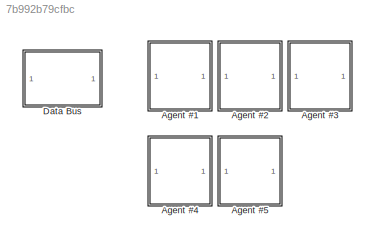
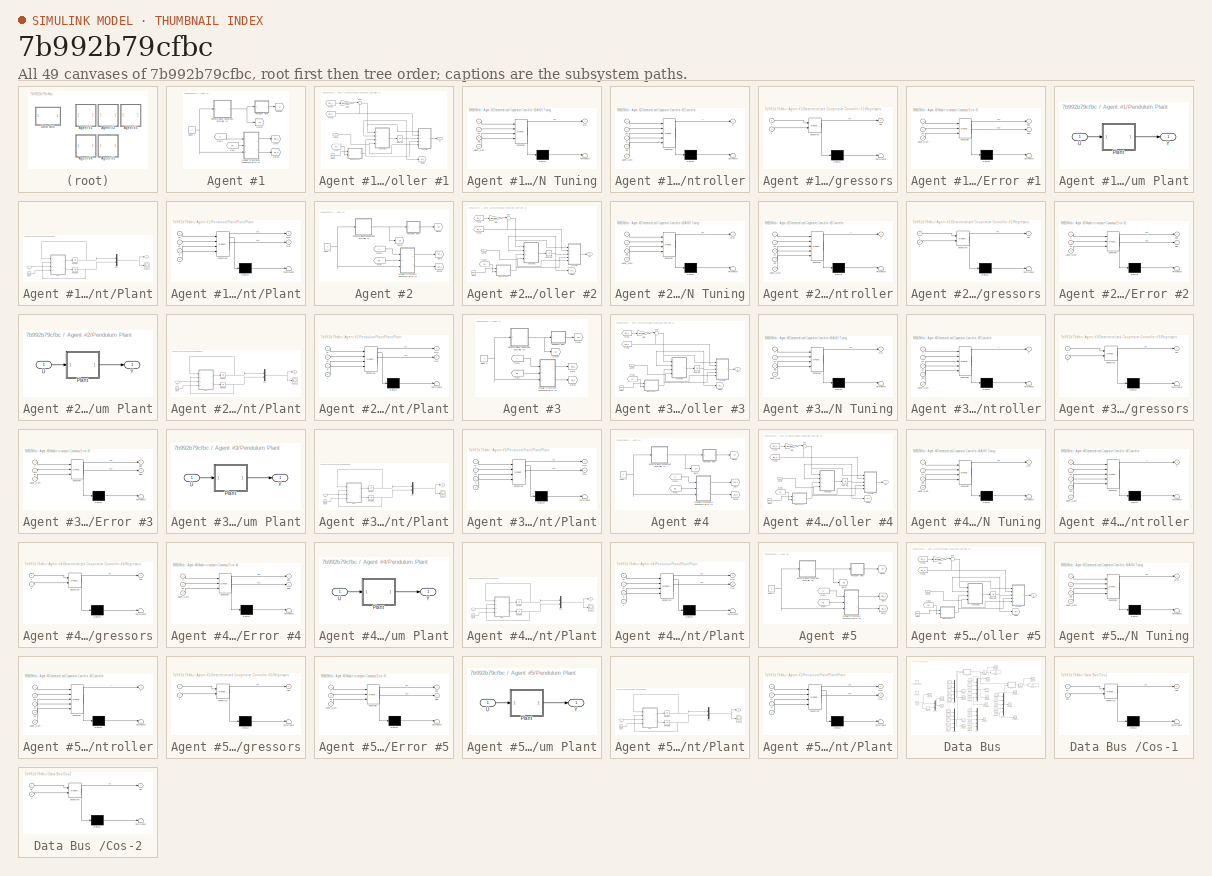
[diagram: thumbnail index - all 49 canvases of the model, root first then tree order]
MODEL slx_7b992b79cfbc
KIND model
CONFIG AbsTol = auto
CONFIG EnableMultiTasking = on
CONFIG FixedStep = auto
CONFIG InitFcn = constants_CAMFC2_Pendulum_Comp_Lewis\n\n
CONFIG MaxStep = auto
CONFIG MinStep = auto
CONFIG RelTol = 1e-3
CONFIG SampleTimeConstraint = Unconstrained
CONFIG Solver = ode23
CONFIG SolverName = ode23
CONFIG StartTime = 0.0
CONFIG StopTime = 40
BLOCK [SubSystem] Agent #1
  Ports = []
  RequestExecContextInheritance = off
BLOCK [Constant] Agent #1/Agent #
BLOCK [SubSystem] Agent #1/Decenteralized Cooperaive Controller #1
  Ports = [1, 1]
  RequestExecContextInheritance = off
BLOCK [SubSystem] Agent #1/Decenteralized Cooperaive Controller #1/ANN Tuning
  ErrorFcn = Stateflow.Translate.translate
  PermitHierarchicalResolution = ExplicitOnly
  Ports = [4, 1]
  RequestExecContextInheritance = off
  SFBlockType = MATLAB Function
  TreatAsAtomicUnit = on
BLOCK [Demux] Agent #1/Decenteralized Cooperaive Controller #1/ANN Tuning/ Demux 
  Outputs = 1
  Ports = [1, 1]
BLOCK [S-Function] Agent #1/Decenteralized Cooperaive Controller #1/ANN Tuning/ SFunction 
  EnableBusSupport = on
  FunctionName = sf_sfun
  Parameters = BN,DN,F,P,k
  PortCounts = [4 2]
  Ports = [4, 2]
  SFcnIsStateOwnerBlock = off
  SFunctionDeploymentMode = off
  Tag = Stateflow S-Function CAMFC2_Pendulum_Comp_Lewis 15
BLOCK [Terminator] Agent #1/Decenteralized Cooperaive Controller #1/ANN Tuning/ Terminator 
BLOCK [Inport] Agent #1/Decenteralized Cooperaive Controller #1/ANN Tuning/Agent_Num
  IconDisplay = Port number
  Port = 4
BLOCK [Outport] Agent #1/Decenteralized Cooperaive Controller #1/ANN Tuning/DW
  IconDisplay = Port number
BLOCK [Inport] Agent #1/Decenteralized Cooperaive Controller #1/ANN Tuning/Phi
  IconDisplay = Port number
  Port = 3
BLOCK [Inport] Agent #1/Decenteralized Cooperaive Controller #1/ANN Tuning/W
  IconDisplay = Port number
  Port = 2
BLOCK [Inport] Agent #1/Decenteralized Cooperaive Controller #1/ANN Tuning/r
  IconDisplay = Port number
BLOCK [Inport] Agent #1/Decenteralized Cooperaive Controller #1/Agent #
  IconDisplay = Port number
BLOCK [Clock] Agent #1/Decenteralized Cooperaive Controller #1/Clock
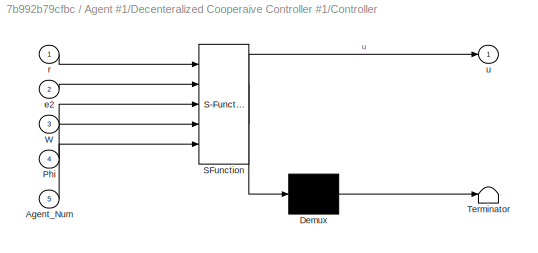
BLOCK [SubSystem] Agent #1/Decenteralized Cooperaive Controller #1/Controller
  ErrorFcn = Stateflow.Translate.translate
  PermitHierarchicalResolution = ExplicitOnly
  Ports = [5, 1]
  RequestExecContextInheritance = off
  SFBlockType = MATLAB Function
  TreatAsAtomicUnit = on
BLOCK [Demux] Agent #1/Decenteralized Cooperaive Controller #1/Controller/ Demux 
  Outputs = 1
  Ports = [1, 1]
BLOCK [S-Function] Agent #1/Decenteralized Cooperaive Controller #1/Controller/ SFunction 
  EnableBusSupport = on
  FunctionName = sf_sfun
  Parameters = BN,DN,c,lambda
  PortCounts = [5 2]
  Ports = [5, 2]
  SFcnIsStateOwnerBlock = off
  SFunctionDeploymentMode = off
  Tag = Stateflow S-Function CAMFC2_Pendulum_Comp_Lewis 14
BLOCK [Terminator] Agent #1/Decenteralized Cooperaive Controller #1/Controller/ Terminator 
BLOCK [Inport] Agent #1/Decenteralized Cooperaive Controller #1/Controller/Agent_Num
  IconDisplay = Port number
  Port = 5
BLOCK [Inport] Agent #1/Decenteralized Cooperaive Controller #1/Controller/Phi
  IconDisplay = Port number
  Port = 4
BLOCK [Inport] Agent #1/Decenteralized Cooperaive Controller #1/Controller/W
  IconDisplay = Port number
  Port = 3
BLOCK [Inport] Agent #1/Decenteralized Cooperaive Controller #1/Controller/e2
  IconDisplay = Port number
  Port = 2
BLOCK [Inport] Agent #1/Decenteralized Cooperaive Controller #1/Controller/r
  IconDisplay = Port number
BLOCK [Outport] Agent #1/Decenteralized Cooperaive Controller #1/Controller/u
  IconDisplay = Port number
BLOCK [From] Agent #1/Decenteralized Cooperaive Controller #1/From1
  GotoTag = E1_1
  TagVisibility = global
BLOCK [From] Agent #1/Decenteralized Cooperaive Controller #1/From2
  GotoTag = X1
  TagVisibility = global
BLOCK [From] Agent #1/Decenteralized Cooperaive Controller #1/From3
  GotoTag = E1_2
  TagVisibility = global
BLOCK [Gain] Agent #1/Decenteralized Cooperaive Controller #1/Gain
  Gain = lambda
  OutDataTypeStr = Inherit: Inherit via internal rule
  ParamDataTypeStr = Inherit: Inherit via internal rule
  SaturateOnIntegerOverflow = off
BLOCK [Goto] Agent #1/Decenteralized Cooperaive Controller #1/Goto2
  GotoTag = W1
  TagVisibility = global
BLOCK [Integrator] Agent #1/Decenteralized Cooperaive Controller #1/Integrator
  InitialCondition = zeros(NN,1)
  Ports = [1, 1]
BLOCK [SubSystem] Agent #1/Decenteralized Cooperaive Controller #1/Regressors
  ErrorFcn = Stateflow.Translate.translate
  PermitHierarchicalResolution = ExplicitOnly
  Ports = [2, 1]
  RequestExecContextInheritance = off
  SFBlockType = MATLAB Function
  TreatAsAtomicUnit = on
BLOCK [Demux] Agent #1/Decenteralized Cooperaive Controller #1/Regressors/ Demux 
  Outputs = 1
  Ports = [1, 1]
BLOCK [S-Function] Agent #1/Decenteralized Cooperaive Controller #1/Regressors/ SFunction 
  EnableBusSupport = on
  FunctionName = sf_sfun
  Parameters = NN,k_NN
  PortCounts = [2 2]
  Ports = [2, 2]
  SFcnIsStateOwnerBlock = off
  SFunctionDeploymentMode = off
  Tag = Stateflow S-Function CAMFC2_Pendulum_Comp_Lewis 16
BLOCK [Terminator] Agent #1/Decenteralized Cooperaive Controller #1/Regressors/ Terminator 
BLOCK [Outport] Agent #1/Decenteralized Cooperaive Controller #1/Regressors/Phi
  IconDisplay = Port number
BLOCK [Inport] Agent #1/Decenteralized Cooperaive Controller #1/Regressors/t
  IconDisplay = Port number
BLOCK [Inport] Agent #1/Decenteralized Cooperaive Controller #1/Regressors/x
  IconDisplay = Port number
  Port = 2
BLOCK [Sum] Agent #1/Decenteralized Cooperaive Controller #1/Sum
  IconShape = round
  InputSameDT = off
  Inputs = |++
  OutDataTypeStr = Inherit: Inherit via internal rule
  Ports = [2, 1]
  SaturateOnIntegerOverflow = off
BLOCK [Outport] Agent #1/Decenteralized Cooperaive Controller #1/U1
  IconDisplay = Port number
BLOCK [From] Agent #1/From
  GotoTag = X0
  TagVisibility = global
BLOCK [From] Agent #1/From1
  GotoTag = X
  TagVisibility = global
BLOCK [Goto] Agent #1/Goto
  GotoTag = E1_1
  TagVisibility = global
BLOCK [Goto] Agent #1/Goto1
  GotoTag = X1
  TagVisibility = global
BLOCK [Goto] Agent #1/Goto2
  GotoTag = U1
  TagVisibility = global
BLOCK [Goto] Agent #1/Goto3
  GotoTag = E1_2
  TagVisibility = global
BLOCK [SubSystem] Agent #1/Module to compute Consensus Error #1
  ErrorFcn = Stateflow.Translate.translate
  PermitHierarchicalResolution = ExplicitOnly
  Ports = [3, 2]
  RequestExecContextInheritance = off
  SFBlockType = MATLAB Function
  TreatAsAtomicUnit = on
BLOCK [Demux] Agent #1/Module to compute Consensus Error #1/ Demux 
  Outputs = 1
  Ports = [1, 1]
BLOCK [S-Function] Agent #1/Module to compute Consensus Error #1/ SFunction 
  EnableBusSupport = on
  FunctionName = sf_sfun
  Parameters = AN,BN,N,n
  PortCounts = [3 3]
  Ports = [3, 3]
  SFcnIsStateOwnerBlock = off
  SFunctionDeploymentMode = off
  Tag = Stateflow S-Function CAMFC2_Pendulum_Comp_Lewis 19
BLOCK [Terminator] Agent #1/Module to compute Consensus Error #1/ Terminator 
BLOCK [Inport] Agent #1/Module to compute Consensus Error #1/Agent_Num
  IconDisplay = Port number
  Port = 3
BLOCK [Outport] Agent #1/Module to compute Consensus Error #1/Ep1
  IconDisplay = Port number
BLOCK [Outport] Agent #1/Module to compute Consensus Error #1/Ep2
  IconDisplay = Port number
  Port = 2
BLOCK [Inport] Agent #1/Module to compute Consensus Error #1/X
  IconDisplay = Port number
BLOCK [Inport] Agent #1/Module to compute Consensus Error #1/X0
  IconDisplay = Port number
  Port = 2
BLOCK [SubSystem] Agent #1/Pendulum Plant
  Ports = [1, 1]
  RequestExecContextInheritance = off
BLOCK [SubSystem] Agent #1/Pendulum Plant/Plant
  Ports = [1, 1]
  RequestExecContextInheritance = off
BLOCK [Clock] Agent #1/Pendulum Plant/Plant/Clock
BLOCK [Integrator] Agent #1/Pendulum Plant/Plant/Integrator
  Ports = [1, 1]
BLOCK [Integrator] Agent #1/Pendulum Plant/Plant/Integrator1
  Ports = [1, 1]
BLOCK [Mux] Agent #1/Pendulum Plant/Plant/Mux
  DisplayOption = bar
  Inputs = 2
  Ports = [2, 1]
BLOCK [SubSystem] Agent #1/Pendulum Plant/Plant/Plant
  ErrorFcn = Stateflow.Translate.translate
  PermitHierarchicalResolution = ExplicitOnly
  Ports = [4, 2]
  RequestExecContextInheritance = off
  SFBlockType = MATLAB Function
  TreatAsAtomicUnit = on
BLOCK [Demux] Agent #1/Pendulum Plant/Plant/Plant/ Demux 
  Outputs = 1
  Ports = [1, 1]
BLOCK [S-Function] Agent #1/Pendulum Plant/Plant/Plant/ SFunction 
  EnableBusSupport = on
  FunctionName = sf_sfun
  Parameters = Bp,Disturb_Freq,Disturb_Val,Jp,Mp,ge,lp
  PortCounts = [4 3]
  Ports = [4, 3]
  SFcnIsStateOwnerBlock = off
  SFunctionDeploymentMode = off
  Tag = Stateflow S-Function CAMFC2_Pendulum_Comp_Lewis 17
BLOCK [Terminator] Agent #1/Pendulum Plant/Plant/Plant/ Terminator 
BLOCK [Outport] Agent #1/Pendulum Plant/Plant/Plant/Dx1
  IconDisplay = Port number
BLOCK [Outport] Agent #1/Pendulum Plant/Plant/Plant/Dx2
  IconDisplay = Port number
  Port = 2
BLOCK [Inport] Agent #1/Pendulum Plant/Plant/Plant/t
  IconDisplay = Port number
  Port = 4
BLOCK [Inport] Agent #1/Pendulum Plant/Plant/Plant/u
  IconDisplay = Port number
  Port = 3
BLOCK [Inport] Agent #1/Pendulum Plant/Plant/Plant/x1
  IconDisplay = Port number
BLOCK [Inport] Agent #1/Pendulum Plant/Plant/Plant/x2
  IconDisplay = Port number
  Port = 2
BLOCK [Scope] Agent #1/Pendulum Plant/Plant/Scope3
  Floating = off
  NumInputPorts = 1
  Ports = [1]
  ScopeSpecificationString = Simulink.scopes.TimeScopeBlockCfg('CurrentConfiguration', extmgr.ConfigurationSet(extmgr.Configuration('Core','General UI',true),extmgr.Configuration('Core','Source UI',true),extmgr.Configuration('Sources','WiredSimulink',true,'DataLoggingVariableName','ScopeData4','DataLoggingSaveFormat','StructureWithTime','DataLoggingDecimation','1','DataLoggingDecimateData',true),extmgr.Configuration('Visuals'...<+1697ch>  <repeated x5 — deduplicated; at blocks: Scope3>
BLOCK [Inport] Agent #1/Pendulum Plant/Plant/U
  IconDisplay = Port number
BLOCK [Outport] Agent #1/Pendulum Plant/Plant/Y
  IconDisplay = Port number
BLOCK [Inport] Agent #1/Pendulum Plant/U
  IconDisplay = Port number
BLOCK [Outport] Agent #1/Pendulum Plant/Y
  IconDisplay = Port number
BLOCK [SubSystem] Agent #2
  Ports = []
  RequestExecContextInheritance = off
BLOCK [Constant] Agent #2/Agent #
  Value = 2
BLOCK [SubSystem] Agent #2/Decenteralized Cooperaive Controller #2
  Ports = [1, 1]
  RequestExecContextInheritance = off
BLOCK [SubSystem] Agent #2/Decenteralized Cooperaive Controller #2/ANN Tuning
  ErrorFcn = Stateflow.Translate.translate
  PermitHierarchicalResolution = ExplicitOnly
  Ports = [4, 1]
  RequestExecContextInheritance = off
  SFBlockType = MATLAB Function
  TreatAsAtomicUnit = on
BLOCK [Demux] Agent #2/Decenteralized Cooperaive Controller #2/ANN Tuning/ Demux 
  Outputs = 1
  Ports = [1, 1]
BLOCK [S-Function] Agent #2/Decenteralized Cooperaive Controller #2/ANN Tuning/ SFunction 
  EnableBusSupport = on
  FunctionName = sf_sfun
  Parameters = BN,DN,F,P,k
  PortCounts = [4 2]
  Ports = [4, 2]
  SFcnIsStateOwnerBlock = off
  SFunctionDeploymentMode = off
  Tag = Stateflow S-Function CAMFC2_Pendulum_Comp_Lewis 1
BLOCK [Terminator] Agent #2/Decenteralized Cooperaive Controller #2/ANN Tuning/ Terminator 
BLOCK [Inport] Agent #2/Decenteralized Cooperaive Controller #2/ANN Tuning/Agent_Num
  IconDisplay = Port number
  Port = 4
BLOCK [Outport] Agent #2/Decenteralized Cooperaive Controller #2/ANN Tuning/DW
  IconDisplay = Port number
BLOCK [Inport] Agent #2/Decenteralized Cooperaive Controller #2/ANN Tuning/Phi
  IconDisplay = Port number
  Port = 3
BLOCK [Inport] Agent #2/Decenteralized Cooperaive Controller #2/ANN Tuning/W
  IconDisplay = Port number
  Port = 2
BLOCK [Inport] Agent #2/Decenteralized Cooperaive Controller #2/ANN Tuning/r
  IconDisplay = Port number
BLOCK [Inport] Agent #2/Decenteralized Cooperaive Controller #2/Agent #
  IconDisplay = Port number
BLOCK [Clock] Agent #2/Decenteralized Cooperaive Controller #2/Clock
BLOCK [SubSystem] Agent #2/Decenteralized Cooperaive Controller #2/Controller
  ErrorFcn = Stateflow.Translate.translate
  PermitHierarchicalResolution = ExplicitOnly
  Ports = [5, 1]
  RequestExecContextInheritance = off
  SFBlockType = MATLAB Function
  TreatAsAtomicUnit = on
BLOCK [Demux] Agent #2/Decenteralized Cooperaive Controller #2/Controller/ Demux 
  Outputs = 1
  Ports = [1, 1]
BLOCK [S-Function] Agent #2/Decenteralized Cooperaive Controller #2/Controller/ SFunction 
  EnableBusSupport = on
  FunctionName = sf_sfun
  Parameters = BN,DN,c,lambda
  PortCounts = [5 2]
  Ports = [5, 2]
  SFcnIsStateOwnerBlock = off
  SFunctionDeploymentMode = off
  Tag = Stateflow S-Function CAMFC2_Pendulum_Comp_Lewis 2
BLOCK [Terminator] Agent #2/Decenteralized Cooperaive Controller #2/Controller/ Terminator 
BLOCK [Inport] Agent #2/Decenteralized Cooperaive Controller #2/Controller/Agent_Num
  IconDisplay = Port number
  Port = 5
BLOCK [Inport] Agent #2/Decenteralized Cooperaive Controller #2/Controller/Phi
  IconDisplay = Port number
  Port = 4
BLOCK [Inport] Agent #2/Decenteralized Cooperaive Controller #2/Controller/W
  IconDisplay = Port number
  Port = 3
BLOCK [Inport] Agent #2/Decenteralized Cooperaive Controller #2/Controller/e2
  IconDisplay = Port number
  Port = 2
BLOCK [Inport] Agent #2/Decenteralized Cooperaive Controller #2/Controller/r
  IconDisplay = Port number
BLOCK [Outport] Agent #2/Decenteralized Cooperaive Controller #2/Controller/u
  IconDisplay = Port number
BLOCK [From] Agent #2/Decenteralized Cooperaive Controller #2/From1
  GotoTag = E2_1
  TagVisibility = global
BLOCK [From] Agent #2/Decenteralized Cooperaive Controller #2/From2
  GotoTag = X2
  TagVisibility = global
BLOCK [From] Agent #2/Decenteralized Cooperaive Controller #2/From3
  GotoTag = E2_2
  TagVisibility = global
BLOCK [Gain] Agent #2/Decenteralized Cooperaive Controller #2/Gain
  Gain = lambda
  OutDataTypeStr = Inherit: Inherit via internal rule
  ParamDataTypeStr = Inherit: Inherit via internal rule
  SaturateOnIntegerOverflow = off
BLOCK [Goto] Agent #2/Decenteralized Cooperaive Controller #2/Goto2
  GotoTag = W2
  TagVisibility = global
BLOCK [Integrator] Agent #2/Decenteralized Cooperaive Controller #2/Integrator
  InitialCondition = zeros(NN,1)
  Ports = [1, 1]
BLOCK [SubSystem] Agent #2/Decenteralized Cooperaive Controller #2/Regressors
  ErrorFcn = Stateflow.Translate.translate
  PermitHierarchicalResolution = ExplicitOnly
  Ports = [2, 1]
  RequestExecContextInheritance = off
  SFBlockType = MATLAB Function
  TreatAsAtomicUnit = on
BLOCK [Demux] Agent #2/Decenteralized Cooperaive Controller #2/Regressors/ Demux 
  Outputs = 1
  Ports = [1, 1]
BLOCK [S-Function] Agent #2/Decenteralized Cooperaive Controller #2/Regressors/ SFunction 
  EnableBusSupport = on
  FunctionName = sf_sfun
  Parameters = NN,k_NN
  PortCounts = [2 2]
  Ports = [2, 2]
  SFcnIsStateOwnerBlock = off
  SFunctionDeploymentMode = off
  Tag = Stateflow S-Function CAMFC2_Pendulum_Comp_Lewis 3
BLOCK [Terminator] Agent #2/Decenteralized Cooperaive Controller #2/Regressors/ Terminator 
BLOCK [Outport] Agent #2/Decenteralized Cooperaive Controller #2/Regressors/Phi
  IconDisplay = Port number
BLOCK [Inport] Agent #2/Decenteralized Cooperaive Controller #2/Regressors/t
  IconDisplay = Port number
BLOCK [Inport] Agent #2/Decenteralized Cooperaive Controller #2/Regressors/x
  IconDisplay = Port number
  Port = 2
BLOCK [Sum] Agent #2/Decenteralized Cooperaive Controller #2/Sum
  IconShape = round
  InputSameDT = off
  Inputs = |++
  OutDataTypeStr = Inherit: Inherit via internal rule
  Ports = [2, 1]
  SaturateOnIntegerOverflow = off
BLOCK [Outport] Agent #2/Decenteralized Cooperaive Controller #2/U2
  IconDisplay = Port number
BLOCK [From] Agent #2/From
  GotoTag = X0
  TagVisibility = global
BLOCK [From] Agent #2/From1
  GotoTag = X
  TagVisibility = global
BLOCK [Goto] Agent #2/Goto
  GotoTag = E2_1
  TagVisibility = global
BLOCK [Goto] Agent #2/Goto1
  GotoTag = X2
  TagVisibility = global
BLOCK [Goto] Agent #2/Goto2
  GotoTag = U2
  TagVisibility = global
BLOCK [Goto] Agent #2/Goto3
  GotoTag = E2_2
  TagVisibility = global
BLOCK [SubSystem] Agent #2/Module to compute Consensus Error #2
  ErrorFcn = Stateflow.Translate.translate
  PermitHierarchicalResolution = ExplicitOnly
  Ports = [3, 2]
  RequestExecContextInheritance = off
  SFBlockType = MATLAB Function
  TreatAsAtomicUnit = on
BLOCK [Demux] Agent #2/Module to compute Consensus Error #2/ Demux 
  Outputs = 1
  Ports = [1, 1]
BLOCK [S-Function] Agent #2/Module to compute Consensus Error #2/ SFunction 
  EnableBusSupport = on
  FunctionName = sf_sfun
  Parameters = AN,BN,N,n
  PortCounts = [3 3]
  Ports = [3, 3]
  SFcnIsStateOwnerBlock = off
  SFunctionDeploymentMode = off
  Tag = Stateflow S-Function CAMFC2_Pendulum_Comp_Lewis 4
BLOCK [Terminator] Agent #2/Module to compute Consensus Error #2/ Terminator 
BLOCK [Inport] Agent #2/Module to compute Consensus Error #2/Agent_Num
  IconDisplay = Port number
  Port = 3
BLOCK [Outport] Agent #2/Module to compute Consensus Error #2/Ep1
  IconDisplay = Port number
BLOCK [Outport] Agent #2/Module to compute Consensus Error #2/Ep2
  IconDisplay = Port number
  Port = 2
BLOCK [Inport] Agent #2/Module to compute Consensus Error #2/X
  IconDisplay = Port number
BLOCK [Inport] Agent #2/Module to compute Consensus Error #2/X0
  IconDisplay = Port number
  Port = 2
BLOCK [SubSystem] Agent #2/Pendulum Plant
  Ports = [1, 1]
  RequestExecContextInheritance = off
BLOCK [SubSystem] Agent #2/Pendulum Plant/Plant
  Ports = [1, 1]
  RequestExecContextInheritance = off
BLOCK [Clock] Agent #2/Pendulum Plant/Plant/Clock
BLOCK [Integrator] Agent #2/Pendulum Plant/Plant/Integrator
  InitialCondition = -0.5
  Ports = [1, 1]
BLOCK [Integrator] Agent #2/Pendulum Plant/Plant/Integrator1
  Ports = [1, 1]
BLOCK [Mux] Agent #2/Pendulum Plant/Plant/Mux
  DisplayOption = bar
  Inputs = 2
  Ports = [2, 1]
BLOCK [SubSystem] Agent #2/Pendulum Plant/Plant/Plant
  ErrorFcn = Stateflow.Translate.translate
  PermitHierarchicalResolution = ExplicitOnly
  Ports = [4, 2]
  RequestExecContextInheritance = off
  SFBlockType = MATLAB Function
  TreatAsAtomicUnit = on
BLOCK [Demux] Agent #2/Pendulum Plant/Plant/Plant/ Demux 
  Outputs = 1
  Ports = [1, 1]
BLOCK [S-Function] Agent #2/Pendulum Plant/Plant/Plant/ SFunction 
  EnableBusSupport = on
  FunctionName = sf_sfun
  Parameters = Bp,Disturb_Freq,Disturb_Val,Jp,Mp,ge,lp
  PortCounts = [4 3]
  Ports = [4, 3]
  SFcnIsStateOwnerBlock = off
  SFunctionDeploymentMode = off
  Tag = Stateflow S-Function CAMFC2_Pendulum_Comp_Lewis 5
BLOCK [Terminator] Agent #2/Pendulum Plant/Plant/Plant/ Terminator 
BLOCK [Outport] Agent #2/Pendulum Plant/Plant/Plant/Dx1
  IconDisplay = Port number
BLOCK [Outport] Agent #2/Pendulum Plant/Plant/Plant/Dx2
  IconDisplay = Port number
  Port = 2
BLOCK [Inport] Agent #2/Pendulum Plant/Plant/Plant/t
  IconDisplay = Port number
  Port = 4
BLOCK [Inport] Agent #2/Pendulum Plant/Plant/Plant/u
  IconDisplay = Port number
  Port = 3
BLOCK [Inport] Agent #2/Pendulum Plant/Plant/Plant/x1
  IconDisplay = Port number
BLOCK [Inport] Agent #2/Pendulum Plant/Plant/Plant/x2
  IconDisplay = Port number
  Port = 2
BLOCK [Scope] Agent #2/Pendulum Plant/Plant/Scope3
  Floating = off
  NumInputPorts = 1
  Ports = [1]
BLOCK [Inport] Agent #2/Pendulum Plant/Plant/U
  IconDisplay = Port number
BLOCK [Outport] Agent #2/Pendulum Plant/Plant/Y
  IconDisplay = Port number
BLOCK [Inport] Agent #2/Pendulum Plant/U
  IconDisplay = Port number
BLOCK [Outport] Agent #2/Pendulum Plant/Y
  IconDisplay = Port number
BLOCK [SubSystem] Agent #3
  Ports = []
  RequestExecContextInheritance = off
BLOCK [Constant] Agent #3/Agent #
  Value = 3
BLOCK [SubSystem] Agent #3/Decenteralized Cooperaive Controller #3
  Ports = [1, 1]
  RequestExecContextInheritance = off
BLOCK [SubSystem] Agent #3/Decenteralized Cooperaive Controller #3/ANN Tuning
  ErrorFcn = Stateflow.Translate.translate
  PermitHierarchicalResolution = ExplicitOnly
  Ports = [4, 1]
  RequestExecContextInheritance = off
  SFBlockType = MATLAB Function
  TreatAsAtomicUnit = on
BLOCK [Demux] Agent #3/Decenteralized Cooperaive Controller #3/ANN Tuning/ Demux 
  Outputs = 1
  Ports = [1, 1]
BLOCK [S-Function] Agent #3/Decenteralized Cooperaive Controller #3/ANN Tuning/ SFunction 
  EnableBusSupport = on
  FunctionName = sf_sfun
  Parameters = BN,DN,F,P,k
  PortCounts = [4 2]
  Ports = [4, 2]
  SFcnIsStateOwnerBlock = off
  SFunctionDeploymentMode = off
  Tag = Stateflow S-Function CAMFC2_Pendulum_Comp_Lewis 6
BLOCK [Terminator] Agent #3/Decenteralized Cooperaive Controller #3/ANN Tuning/ Terminator 
BLOCK [Inport] Agent #3/Decenteralized Cooperaive Controller #3/ANN Tuning/Agent_Num
  IconDisplay = Port number
  Port = 4
BLOCK [Outport] Agent #3/Decenteralized Cooperaive Controller #3/ANN Tuning/DW
  IconDisplay = Port number
BLOCK [Inport] Agent #3/Decenteralized Cooperaive Controller #3/ANN Tuning/Phi
  IconDisplay = Port number
  Port = 3
BLOCK [Inport] Agent #3/Decenteralized Cooperaive Controller #3/ANN Tuning/W
  IconDisplay = Port number
  Port = 2
BLOCK [Inport] Agent #3/Decenteralized Cooperaive Controller #3/ANN Tuning/r
  IconDisplay = Port number
BLOCK [Inport] Agent #3/Decenteralized Cooperaive Controller #3/Agent #
  IconDisplay = Port number
BLOCK [Clock] Agent #3/Decenteralized Cooperaive Controller #3/Clock
BLOCK [SubSystem] Agent #3/Decenteralized Cooperaive Controller #3/Controller
  ErrorFcn = Stateflow.Translate.translate
  PermitHierarchicalResolution = ExplicitOnly
  Ports = [5, 1]
  RequestExecContextInheritance = off
  SFBlockType = MATLAB Function
  TreatAsAtomicUnit = on
BLOCK [Demux] Agent #3/Decenteralized Cooperaive Controller #3/Controller/ Demux 
  Outputs = 1
  Ports = [1, 1]
BLOCK [S-Function] Agent #3/Decenteralized Cooperaive Controller #3/Controller/ SFunction 
  EnableBusSupport = on
  FunctionName = sf_sfun
  Parameters = BN,DN,c,lambda
  PortCounts = [5 2]
  Ports = [5, 2]
  SFcnIsStateOwnerBlock = off
  SFunctionDeploymentMode = off
  Tag = Stateflow S-Function CAMFC2_Pendulum_Comp_Lewis 7
BLOCK [Terminator] Agent #3/Decenteralized Cooperaive Controller #3/Controller/ Terminator 
BLOCK [Inport] Agent #3/Decenteralized Cooperaive Controller #3/Controller/Agent_Num
  IconDisplay = Port number
  Port = 5
BLOCK [Inport] Agent #3/Decenteralized Cooperaive Controller #3/Controller/Phi
  IconDisplay = Port number
  Port = 4
BLOCK [Inport] Agent #3/Decenteralized Cooperaive Controller #3/Controller/W
  IconDisplay = Port number
  Port = 3
BLOCK [Inport] Agent #3/Decenteralized Cooperaive Controller #3/Controller/e2
  IconDisplay = Port number
  Port = 2
BLOCK [Inport] Agent #3/Decenteralized Cooperaive Controller #3/Controller/r
  IconDisplay = Port number
BLOCK [Outport] Agent #3/Decenteralized Cooperaive Controller #3/Controller/u
  IconDisplay = Port number
BLOCK [From] Agent #3/Decenteralized Cooperaive Controller #3/From1
  GotoTag = E3_1
  TagVisibility = global
BLOCK [From] Agent #3/Decenteralized Cooperaive Controller #3/From2
  GotoTag = X3
  TagVisibility = global
BLOCK [From] Agent #3/Decenteralized Cooperaive Controller #3/From3
  GotoTag = E3_2
  TagVisibility = global
BLOCK [Gain] Agent #3/Decenteralized Cooperaive Controller #3/Gain
  Gain = lambda
  OutDataTypeStr = Inherit: Inherit via internal rule
  ParamDataTypeStr = Inherit: Inherit via internal rule
  SaturateOnIntegerOverflow = off
BLOCK [Goto] Agent #3/Decenteralized Cooperaive Controller #3/Goto2
  GotoTag = W3
  TagVisibility = global
BLOCK [Integrator] Agent #3/Decenteralized Cooperaive Controller #3/Integrator
  InitialCondition = zeros(NN,1)
  Ports = [1, 1]
BLOCK [SubSystem] Agent #3/Decenteralized Cooperaive Controller #3/Regressors
  ErrorFcn = Stateflow.Translate.translate
  PermitHierarchicalResolution = ExplicitOnly
  Ports = [2, 1]
  RequestExecContextInheritance = off
  SFBlockType = MATLAB Function
  TreatAsAtomicUnit = on
BLOCK [Demux] Agent #3/Decenteralized Cooperaive Controller #3/Regressors/ Demux 
  Outputs = 1
  Ports = [1, 1]
BLOCK [S-Function] Agent #3/Decenteralized Cooperaive Controller #3/Regressors/ SFunction 
  EnableBusSupport = on
  FunctionName = sf_sfun
  Parameters = NN,k_NN
  PortCounts = [2 2]
  Ports = [2, 2]
  SFcnIsStateOwnerBlock = off
  SFunctionDeploymentMode = off
  Tag = Stateflow S-Function CAMFC2_Pendulum_Comp_Lewis 8
BLOCK [Terminator] Agent #3/Decenteralized Cooperaive Controller #3/Regressors/ Terminator 
BLOCK [Outport] Agent #3/Decenteralized Cooperaive Controller #3/Regressors/Phi
  IconDisplay = Port number
BLOCK [Inport] Agent #3/Decenteralized Cooperaive Controller #3/Regressors/t
  IconDisplay = Port number
BLOCK [Inport] Agent #3/Decenteralized Cooperaive Controller #3/Regressors/x
  IconDisplay = Port number
  Port = 2
BLOCK [Sum] Agent #3/Decenteralized Cooperaive Controller #3/Sum
  IconShape = round
  InputSameDT = off
  Inputs = |++
  OutDataTypeStr = Inherit: Inherit via internal rule
  Ports = [2, 1]
  SaturateOnIntegerOverflow = off
BLOCK [Outport] Agent #3/Decenteralized Cooperaive Controller #3/U3
  IconDisplay = Port number
BLOCK [From] Agent #3/From
  GotoTag = X0
  TagVisibility = global
BLOCK [From] Agent #3/From1
  GotoTag = X
  TagVisibility = global
BLOCK [Goto] Agent #3/Goto
  GotoTag = E3_1
  TagVisibility = global
BLOCK [Goto] Agent #3/Goto1
  GotoTag = X3
  TagVisibility = global
BLOCK [Goto] Agent #3/Goto2
  GotoTag = U3
  TagVisibility = global
BLOCK [Goto] Agent #3/Goto3
  GotoTag = E3_2
  TagVisibility = global
BLOCK [SubSystem] Agent #3/Module to compute Consensus Error #3
  ErrorFcn = Stateflow.Translate.translate
  PermitHierarchicalResolution = ExplicitOnly
  Ports = [3, 2]
  RequestExecContextInheritance = off
  SFBlockType = MATLAB Function
  TreatAsAtomicUnit = on
BLOCK [Demux] Agent #3/Module to compute Consensus Error #3/ Demux 
  Outputs = 1
  Ports = [1, 1]
BLOCK [S-Function] Agent #3/Module to compute Consensus Error #3/ SFunction 
  EnableBusSupport = on
  FunctionName = sf_sfun
  Parameters = AN,BN,N,n
  PortCounts = [3 3]
  Ports = [3, 3]
  SFcnIsStateOwnerBlock = off
  SFunctionDeploymentMode = off
  Tag = Stateflow S-Function CAMFC2_Pendulum_Comp_Lewis 9
BLOCK [Terminator] Agent #3/Module to compute Consensus Error #3/ Terminator 
BLOCK [Inport] Agent #3/Module to compute Consensus Error #3/Agent_Num
  IconDisplay = Port number
  Port = 3
BLOCK [Outport] Agent #3/Module to compute Consensus Error #3/Ep1
  IconDisplay = Port number
BLOCK [Outport] Agent #3/Module to compute Consensus Error #3/Ep2
  IconDisplay = Port number
  Port = 2
BLOCK [Inport] Agent #3/Module to compute Consensus Error #3/X
  IconDisplay = Port number
BLOCK [Inport] Agent #3/Module to compute Consensus Error #3/X0
  IconDisplay = Port number
  Port = 2
BLOCK [SubSystem] Agent #3/Pendulum Plant
  Ports = [1, 1]
  RequestExecContextInheritance = off
BLOCK [SubSystem] Agent #3/Pendulum Plant/Plant
  Ports = [1, 1]
  RequestExecContextInheritance = off
BLOCK [Clock] Agent #3/Pendulum Plant/Plant/Clock
BLOCK [Integrator] Agent #3/Pendulum Plant/Plant/Integrator
  InitialCondition = +0.5
  Ports = [1, 1]
BLOCK [Integrator] Agent #3/Pendulum Plant/Plant/Integrator1
  Ports = [1, 1]
BLOCK [Mux] Agent #3/Pendulum Plant/Plant/Mux
  DisplayOption = bar
  Inputs = 2
  Ports = [2, 1]
BLOCK [SubSystem] Agent #3/Pendulum Plant/Plant/Plant
  ErrorFcn = Stateflow.Translate.translate
  PermitHierarchicalResolution = ExplicitOnly
  Ports = [4, 2]
  RequestExecContextInheritance = off
  SFBlockType = MATLAB Function
  TreatAsAtomicUnit = on
BLOCK [Demux] Agent #3/Pendulum Plant/Plant/Plant/ Demux 
  Outputs = 1
  Ports = [1, 1]
BLOCK [S-Function] Agent #3/Pendulum Plant/Plant/Plant/ SFunction 
  EnableBusSupport = on
  FunctionName = sf_sfun
  Parameters = Bp,Disturb_Freq,Disturb_Val,Jp,Mp,ge,lp
  PortCounts = [4 3]
  Ports = [4, 3]
  SFcnIsStateOwnerBlock = off
  SFunctionDeploymentMode = off
  Tag = Stateflow S-Function CAMFC2_Pendulum_Comp_Lewis 10
BLOCK [Terminator] Agent #3/Pendulum Plant/Plant/Plant/ Terminator 
BLOCK [Outport] Agent #3/Pendulum Plant/Plant/Plant/Dx1
  IconDisplay = Port number
BLOCK [Outport] Agent #3/Pendulum Plant/Plant/Plant/Dx2
  IconDisplay = Port number
  Port = 2
BLOCK [Inport] Agent #3/Pendulum Plant/Plant/Plant/t
  IconDisplay = Port number
  Port = 4
BLOCK [Inport] Agent #3/Pendulum Plant/Plant/Plant/u
  IconDisplay = Port number
  Port = 3
BLOCK [Inport] Agent #3/Pendulum Plant/Plant/Plant/x1
  IconDisplay = Port number
BLOCK [Inport] Agent #3/Pendulum Plant/Plant/Plant/x2
  IconDisplay = Port number
  Port = 2
BLOCK [Scope] Agent #3/Pendulum Plant/Plant/Scope3
  Floating = off
  NumInputPorts = 1
  Ports = [1]
BLOCK [Inport] Agent #3/Pendulum Plant/Plant/U
  IconDisplay = Port number
BLOCK [Outport] Agent #3/Pendulum Plant/Plant/Y
  IconDisplay = Port number
BLOCK [Inport] Agent #3/Pendulum Plant/U
  IconDisplay = Port number
BLOCK [Outport] Agent #3/Pendulum Plant/Y
  IconDisplay = Port number
BLOCK [SubSystem] Agent #4
  Ports = []
  RequestExecContextInheritance = off
BLOCK [Constant] Agent #4/Agent #
  Value = 4
BLOCK [SubSystem] Agent #4/Decenteralized Cooperaive Controller #4
  Ports = [1, 1]
  RequestExecContextInheritance = off
BLOCK [SubSystem] Agent #4/Decenteralized Cooperaive Controller #4/ANN Tuning
  ErrorFcn = Stateflow.Translate.translate
  PermitHierarchicalResolution = ExplicitOnly
  Ports = [4, 1]
  RequestExecContextInheritance = off
  SFBlockType = MATLAB Function
  TreatAsAtomicUnit = on
BLOCK [Demux] Agent #4/Decenteralized Cooperaive Controller #4/ANN Tuning/ Demux 
  Outputs = 1
  Ports = [1, 1]
BLOCK [S-Function] Agent #4/Decenteralized Cooperaive Controller #4/ANN Tuning/ SFunction 
  EnableBusSupport = on
  FunctionName = sf_sfun
  Parameters = BN,DN,F,P,k
  PortCounts = [4 2]
  Ports = [4, 2]
  SFcnIsStateOwnerBlock = off
  SFunctionDeploymentMode = off
  Tag = Stateflow S-Function CAMFC2_Pendulum_Comp_Lewis 11
BLOCK [Terminator] Agent #4/Decenteralized Cooperaive Controller #4/ANN Tuning/ Terminator 
BLOCK [Inport] Agent #4/Decenteralized Cooperaive Controller #4/ANN Tuning/Agent_Num
  IconDisplay = Port number
  Port = 4
BLOCK [Outport] Agent #4/Decenteralized Cooperaive Controller #4/ANN Tuning/DW
  IconDisplay = Port number
BLOCK [Inport] Agent #4/Decenteralized Cooperaive Controller #4/ANN Tuning/Phi
  IconDisplay = Port number
  Port = 3
BLOCK [Inport] Agent #4/Decenteralized Cooperaive Controller #4/ANN Tuning/W
  IconDisplay = Port number
  Port = 2
BLOCK [Inport] Agent #4/Decenteralized Cooperaive Controller #4/ANN Tuning/r
  IconDisplay = Port number
BLOCK [Inport] Agent #4/Decenteralized Cooperaive Controller #4/Agent #
  IconDisplay = Port number
BLOCK [Clock] Agent #4/Decenteralized Cooperaive Controller #4/Clock
BLOCK [SubSystem] Agent #4/Decenteralized Cooperaive Controller #4/Controller
  ErrorFcn = Stateflow.Translate.translate
  PermitHierarchicalResolution = ExplicitOnly
  Ports = [5, 1]
  RequestExecContextInheritance = off
  SFBlockType = MATLAB Function
  TreatAsAtomicUnit = on
BLOCK [Demux] Agent #4/Decenteralized Cooperaive Controller #4/Controller/ Demux 
  Outputs = 1
  Ports = [1, 1]
BLOCK [S-Function] Agent #4/Decenteralized Cooperaive Controller #4/Controller/ SFunction 
  EnableBusSupport = on
  FunctionName = sf_sfun
  Parameters = BN,DN,c,lambda
  PortCounts = [5 2]
  Ports = [5, 2]
  SFcnIsStateOwnerBlock = off
  SFunctionDeploymentMode = off
  Tag = Stateflow S-Function CAMFC2_Pendulum_Comp_Lewis 12
BLOCK [Terminator] Agent #4/Decenteralized Cooperaive Controller #4/Controller/ Terminator 
BLOCK [Inport] Agent #4/Decenteralized Cooperaive Controller #4/Controller/Agent_Num
  IconDisplay = Port number
  Port = 5
BLOCK [Inport] Agent #4/Decenteralized Cooperaive Controller #4/Controller/Phi
  IconDisplay = Port number
  Port = 4
BLOCK [Inport] Agent #4/Decenteralized Cooperaive Controller #4/Controller/W
  IconDisplay = Port number
  Port = 3
BLOCK [Inport] Agent #4/Decenteralized Cooperaive Controller #4/Controller/e2
  IconDisplay = Port number
  Port = 2
BLOCK [Inport] Agent #4/Decenteralized Cooperaive Controller #4/Controller/r
  IconDisplay = Port number
BLOCK [Outport] Agent #4/Decenteralized Cooperaive Controller #4/Controller/u
  IconDisplay = Port number
BLOCK [From] Agent #4/Decenteralized Cooperaive Controller #4/From1
  GotoTag = E4_1
  TagVisibility = global
BLOCK [From] Agent #4/Decenteralized Cooperaive Controller #4/From2
  GotoTag = X4
  TagVisibility = global
BLOCK [From] Agent #4/Decenteralized Cooperaive Controller #4/From3
  GotoTag = E4_2
  TagVisibility = global
BLOCK [Gain] Agent #4/Decenteralized Cooperaive Controller #4/Gain
  Gain = lambda
  OutDataTypeStr = Inherit: Inherit via internal rule
  ParamDataTypeStr = Inherit: Inherit via internal rule
  SaturateOnIntegerOverflow = off
BLOCK [Goto] Agent #4/Decenteralized Cooperaive Controller #4/Goto2
  GotoTag = W4
  TagVisibility = global
BLOCK [Integrator] Agent #4/Decenteralized Cooperaive Controller #4/Integrator
  InitialCondition = zeros(NN,1)
  Ports = [1, 1]
BLOCK [SubSystem] Agent #4/Decenteralized Cooperaive Controller #4/Regressors
  ErrorFcn = Stateflow.Translate.translate
  PermitHierarchicalResolution = ExplicitOnly
  Ports = [2, 1]
  RequestExecContextInheritance = off
  SFBlockType = MATLAB Function
  TreatAsAtomicUnit = on
BLOCK [Demux] Agent #4/Decenteralized Cooperaive Controller #4/Regressors/ Demux 
  Outputs = 1
  Ports = [1, 1]
BLOCK [S-Function] Agent #4/Decenteralized Cooperaive Controller #4/Regressors/ SFunction 
  EnableBusSupport = on
  FunctionName = sf_sfun
  Parameters = NN,k_NN
  PortCounts = [2 2]
  Ports = [2, 2]
  SFcnIsStateOwnerBlock = off
  SFunctionDeploymentMode = off
  Tag = Stateflow S-Function CAMFC2_Pendulum_Comp_Lewis 13
BLOCK [Terminator] Agent #4/Decenteralized Cooperaive Controller #4/Regressors/ Terminator 
BLOCK [Outport] Agent #4/Decenteralized Cooperaive Controller #4/Regressors/Phi
  IconDisplay = Port number
BLOCK [Inport] Agent #4/Decenteralized Cooperaive Controller #4/Regressors/t
  IconDisplay = Port number
BLOCK [Inport] Agent #4/Decenteralized Cooperaive Controller #4/Regressors/x
  IconDisplay = Port number
  Port = 2
BLOCK [Sum] Agent #4/Decenteralized Cooperaive Controller #4/Sum
  IconShape = round
  InputSameDT = off
  Inputs = |++
  OutDataTypeStr = Inherit: Inherit via internal rule
  Ports = [2, 1]
  SaturateOnIntegerOverflow = off
BLOCK [Outport] Agent #4/Decenteralized Cooperaive Controller #4/U4
  IconDisplay = Port number
BLOCK [From] Agent #4/From
  GotoTag = X0
  TagVisibility = global
BLOCK [From] Agent #4/From1
  GotoTag = X
  TagVisibility = global
BLOCK [Goto] Agent #4/Goto
  GotoTag = E4_1
  TagVisibility = global
BLOCK [Goto] Agent #4/Goto1
  GotoTag = X4
  TagVisibility = global
BLOCK [Goto] Agent #4/Goto2
  GotoTag = U4
  TagVisibility = global
BLOCK [Goto] Agent #4/Goto3
  GotoTag = E4_2
  TagVisibility = global
BLOCK [SubSystem] Agent #4/Module to compute Consensus Error #4
  ErrorFcn = Stateflow.Translate.translate
  PermitHierarchicalResolution = ExplicitOnly
  Ports = [3, 2]
  RequestExecContextInheritance = off
  SFBlockType = MATLAB Function
  TreatAsAtomicUnit = on
BLOCK [Demux] Agent #4/Module to compute Consensus Error #4/ Demux 
  Outputs = 1
  Ports = [1, 1]
BLOCK [S-Function] Agent #4/Module to compute Consensus Error #4/ SFunction 
  EnableBusSupport = on
  FunctionName = sf_sfun
  Parameters = AN,BN,N,n
  PortCounts = [3 3]
  Ports = [3, 3]
  SFcnIsStateOwnerBlock = off
  SFunctionDeploymentMode = off
  Tag = Stateflow S-Function CAMFC2_Pendulum_Comp_Lewis 18
BLOCK [Terminator] Agent #4/Module to compute Consensus Error #4/ Terminator 
BLOCK [Inport] Agent #4/Module to compute Consensus Error #4/Agent_Num
  IconDisplay = Port number
  Port = 3
BLOCK [Outport] Agent #4/Module to compute Consensus Error #4/Ep1
  IconDisplay = Port number
BLOCK [Outport] Agent #4/Module to compute Consensus Error #4/Ep2
  IconDisplay = Port number
  Port = 2
BLOCK [Inport] Agent #4/Module to compute Consensus Error #4/X
  IconDisplay = Port number
BLOCK [Inport] Agent #4/Module to compute Consensus Error #4/X0
  IconDisplay = Port number
  Port = 2
BLOCK [SubSystem] Agent #4/Pendulum Plant
  Ports = [1, 1]
  RequestExecContextInheritance = off
BLOCK [SubSystem] Agent #4/Pendulum Plant/Plant
  Ports = [1, 1]
  RequestExecContextInheritance = off
BLOCK [Clock] Agent #4/Pendulum Plant/Plant/Clock
BLOCK [Integrator] Agent #4/Pendulum Plant/Plant/Integrator
  InitialCondition = -1
  Ports = [1, 1]
BLOCK [Integrator] Agent #4/Pendulum Plant/Plant/Integrator1
  Ports = [1, 1]
BLOCK [Mux] Agent #4/Pendulum Plant/Plant/Mux
  DisplayOption = bar
  Inputs = 2
  Ports = [2, 1]
BLOCK [SubSystem] Agent #4/Pendulum Plant/Plant/Plant
  ErrorFcn = Stateflow.Translate.translate
  PermitHierarchicalResolution = ExplicitOnly
  Ports = [4, 2]
  RequestExecContextInheritance = off
  SFBlockType = MATLAB Function
  TreatAsAtomicUnit = on
BLOCK [Demux] Agent #4/Pendulum Plant/Plant/Plant/ Demux 
  Outputs = 1
  Ports = [1, 1]
BLOCK [S-Function] Agent #4/Pendulum Plant/Plant/Plant/ SFunction 
  EnableBusSupport = on
  FunctionName = sf_sfun
  Parameters = Bp,Disturb_Freq,Disturb_Val,Jp,Mp,ge,lp
  PortCounts = [4 3]
  Ports = [4, 3]
  SFcnIsStateOwnerBlock = off
  SFunctionDeploymentMode = off
  Tag = Stateflow S-Function CAMFC2_Pendulum_Comp_Lewis 20
BLOCK [Terminator] Agent #4/Pendulum Plant/Plant/Plant/ Terminator 
BLOCK [Outport] Agent #4/Pendulum Plant/Plant/Plant/Dx1
  IconDisplay = Port number
BLOCK [Outport] Agent #4/Pendulum Plant/Plant/Plant/Dx2
  IconDisplay = Port number
  Port = 2
BLOCK [Inport] Agent #4/Pendulum Plant/Plant/Plant/t
  IconDisplay = Port number
  Port = 4
BLOCK [Inport] Agent #4/Pendulum Plant/Plant/Plant/u
  IconDisplay = Port number
  Port = 3
BLOCK [Inport] Agent #4/Pendulum Plant/Plant/Plant/x1
  IconDisplay = Port number
BLOCK [Inport] Agent #4/Pendulum Plant/Plant/Plant/x2
  IconDisplay = Port number
  Port = 2
BLOCK [Scope] Agent #4/Pendulum Plant/Plant/Scope3
  Floating = off
  NumInputPorts = 1
  Ports = [1]
BLOCK [Inport] Agent #4/Pendulum Plant/Plant/U
  IconDisplay = Port number
BLOCK [Outport] Agent #4/Pendulum Plant/Plant/Y
  IconDisplay = Port number
BLOCK [Inport] Agent #4/Pendulum Plant/U
  IconDisplay = Port number
BLOCK [Outport] Agent #4/Pendulum Plant/Y
  IconDisplay = Port number
BLOCK [SubSystem] Agent #5
  Ports = []
  RequestExecContextInheritance = off
BLOCK [Constant] Agent #5/Agent #
  Value = 5
BLOCK [SubSystem] Agent #5/Decenteralized Cooperaive Controller #5
  Ports = [1, 1]
  RequestExecContextInheritance = off
BLOCK [SubSystem] Agent #5/Decenteralized Cooperaive Controller #5/ANN Tuning
  ErrorFcn = Stateflow.Translate.translate
  PermitHierarchicalResolution = ExplicitOnly
  Ports = [4, 1]
  RequestExecContextInheritance = off
  SFBlockType = MATLAB Function
  TreatAsAtomicUnit = on
BLOCK [Demux] Agent #5/Decenteralized Cooperaive Controller #5/ANN Tuning/ Demux 
  Outputs = 1
  Ports = [1, 1]
BLOCK [S-Function] Agent #5/Decenteralized Cooperaive Controller #5/ANN Tuning/ SFunction 
  EnableBusSupport = on
  FunctionName = sf_sfun
  Parameters = BN,DN,F,P,k
  PortCounts = [4 2]
  Ports = [4, 2]
  SFcnIsStateOwnerBlock = off
  SFunctionDeploymentMode = off
  Tag = Stateflow S-Function CAMFC2_Pendulum_Comp_Lewis 21
BLOCK [Terminator] Agent #5/Decenteralized Cooperaive Controller #5/ANN Tuning/ Terminator 
BLOCK [Inport] Agent #5/Decenteralized Cooperaive Controller #5/ANN Tuning/Agent_Num
  IconDisplay = Port number
  Port = 4
BLOCK [Outport] Agent #5/Decenteralized Cooperaive Controller #5/ANN Tuning/DW
  IconDisplay = Port number
BLOCK [Inport] Agent #5/Decenteralized Cooperaive Controller #5/ANN Tuning/Phi
  IconDisplay = Port number
  Port = 3
BLOCK [Inport] Agent #5/Decenteralized Cooperaive Controller #5/ANN Tuning/W
  IconDisplay = Port number
  Port = 2
BLOCK [Inport] Agent #5/Decenteralized Cooperaive Controller #5/ANN Tuning/r
  IconDisplay = Port number
BLOCK [Inport] Agent #5/Decenteralized Cooperaive Controller #5/Agent #
  IconDisplay = Port number
BLOCK [Clock] Agent #5/Decenteralized Cooperaive Controller #5/Clock
BLOCK [SubSystem] Agent #5/Decenteralized Cooperaive Controller #5/Controller
  ErrorFcn = Stateflow.Translate.translate
  PermitHierarchicalResolution = ExplicitOnly
  Ports = [5, 1]
  RequestExecContextInheritance = off
  SFBlockType = MATLAB Function
  TreatAsAtomicUnit = on
BLOCK [Demux] Agent #5/Decenteralized Cooperaive Controller #5/Controller/ Demux 
  Outputs = 1
  Ports = [1, 1]
BLOCK [S-Function] Agent #5/Decenteralized Cooperaive Controller #5/Controller/ SFunction 
  EnableBusSupport = on
  FunctionName = sf_sfun
  Parameters = BN,DN,c,lambda
  PortCounts = [5 2]
  Ports = [5, 2]
  SFcnIsStateOwnerBlock = off
  SFunctionDeploymentMode = off
  Tag = Stateflow S-Function CAMFC2_Pendulum_Comp_Lewis 22
BLOCK [Terminator] Agent #5/Decenteralized Cooperaive Controller #5/Controller/ Terminator 
BLOCK [Inport] Agent #5/Decenteralized Cooperaive Controller #5/Controller/Agent_Num
  IconDisplay = Port number
  Port = 5
BLOCK [Inport] Agent #5/Decenteralized Cooperaive Controller #5/Controller/Phi
  IconDisplay = Port number
  Port = 4
BLOCK [Inport] Agent #5/Decenteralized Cooperaive Controller #5/Controller/W
  IconDisplay = Port number
  Port = 3
BLOCK [Inport] Agent #5/Decenteralized Cooperaive Controller #5/Controller/e2
  IconDisplay = Port number
  Port = 2
BLOCK [Inport] Agent #5/Decenteralized Cooperaive Controller #5/Controller/r
  IconDisplay = Port number
BLOCK [Outport] Agent #5/Decenteralized Cooperaive Controller #5/Controller/u
  IconDisplay = Port number
BLOCK [From] Agent #5/Decenteralized Cooperaive Controller #5/From1
  GotoTag = E5_1
  TagVisibility = global
BLOCK [From] Agent #5/Decenteralized Cooperaive Controller #5/From2
  GotoTag = X5
  TagVisibility = global
BLOCK [From] Agent #5/Decenteralized Cooperaive Controller #5/From3
  GotoTag = E5_2
  TagVisibility = global
BLOCK [Gain] Agent #5/Decenteralized Cooperaive Controller #5/Gain
  Gain = lambda
  OutDataTypeStr = Inherit: Inherit via internal rule
  ParamDataTypeStr = Inherit: Inherit via internal rule
  SaturateOnIntegerOverflow = off
BLOCK [Goto] Agent #5/Decenteralized Cooperaive Controller #5/Goto2
  GotoTag = W5
  TagVisibility = global
BLOCK [Integrator] Agent #5/Decenteralized Cooperaive Controller #5/Integrator
  InitialCondition = zeros(NN,1)
  Ports = [1, 1]
BLOCK [SubSystem] Agent #5/Decenteralized Cooperaive Controller #5/Regressors
  ErrorFcn = Stateflow.Translate.translate
  PermitHierarchicalResolution = ExplicitOnly
  Ports = [2, 1]
  RequestExecContextInheritance = off
  SFBlockType = MATLAB Function
  TreatAsAtomicUnit = on
BLOCK [Demux] Agent #5/Decenteralized Cooperaive Controller #5/Regressors/ Demux 
  Outputs = 1
  Ports = [1, 1]
BLOCK [S-Function] Agent #5/Decenteralized Cooperaive Controller #5/Regressors/ SFunction 
  EnableBusSupport = on
  FunctionName = sf_sfun
  Parameters = NN,k_NN
  PortCounts = [2 2]
  Ports = [2, 2]
  SFcnIsStateOwnerBlock = off
  SFunctionDeploymentMode = off
  Tag = Stateflow S-Function CAMFC2_Pendulum_Comp_Lewis 23
BLOCK [Terminator] Agent #5/Decenteralized Cooperaive Controller #5/Regressors/ Terminator 
BLOCK [Outport] Agent #5/Decenteralized Cooperaive Controller #5/Regressors/Phi
  IconDisplay = Port number
BLOCK [Inport] Agent #5/Decenteralized Cooperaive Controller #5/Regressors/t
  IconDisplay = Port number
BLOCK [Inport] Agent #5/Decenteralized Cooperaive Controller #5/Regressors/x
  IconDisplay = Port number
  Port = 2
BLOCK [Sum] Agent #5/Decenteralized Cooperaive Controller #5/Sum
  IconShape = round
  InputSameDT = off
  Inputs = |++
  OutDataTypeStr = Inherit: Inherit via internal rule
  Ports = [2, 1]
  SaturateOnIntegerOverflow = off
BLOCK [Outport] Agent #5/Decenteralized Cooperaive Controller #5/U5
  IconDisplay = Port number
BLOCK [From] Agent #5/From
  GotoTag = X0
  TagVisibility = global
BLOCK [From] Agent #5/From1
  GotoTag = X
  TagVisibility = global
BLOCK [Goto] Agent #5/Goto
  GotoTag = E5_1
  TagVisibility = global
BLOCK [Goto] Agent #5/Goto1
  GotoTag = X5
  TagVisibility = global
BLOCK [Goto] Agent #5/Goto2
  GotoTag = U5
  TagVisibility = global
BLOCK [Goto] Agent #5/Goto3
  GotoTag = E5_2
  TagVisibility = global
BLOCK [SubSystem] Agent #5/Module to compute Consensus Error #5
  ErrorFcn = Stateflow.Translate.translate
  PermitHierarchicalResolution = ExplicitOnly
  Ports = [3, 2]
  RequestExecContextInheritance = off
  SFBlockType = MATLAB Function
  TreatAsAtomicUnit = on
BLOCK [Demux] Agent #5/Module to compute Consensus Error #5/ Demux 
  Outputs = 1
  Ports = [1, 1]
BLOCK [S-Function] Agent #5/Module to compute Consensus Error #5/ SFunction 
  EnableBusSupport = on
  FunctionName = sf_sfun
  Parameters = AN,BN,N,n
  PortCounts = [3 3]
  Ports = [3, 3]
  SFcnIsStateOwnerBlock = off
  SFunctionDeploymentMode = off
  Tag = Stateflow S-Function CAMFC2_Pendulum_Comp_Lewis 24
BLOCK [Terminator] Agent #5/Module to compute Consensus Error #5/ Terminator 
BLOCK [Inport] Agent #5/Module to compute Consensus Error #5/Agent_Num
  IconDisplay = Port number
  Port = 3
BLOCK [Outport] Agent #5/Module to compute Consensus Error #5/Ep1
  IconDisplay = Port number
BLOCK [Outport] Agent #5/Module to compute Consensus Error #5/Ep2
  IconDisplay = Port number
  Port = 2
BLOCK [Inport] Agent #5/Module to compute Consensus Error #5/X
  IconDisplay = Port number
BLOCK [Inport] Agent #5/Module to compute Consensus Error #5/X0
  IconDisplay = Port number
  Port = 2
BLOCK [SubSystem] Agent #5/Pendulum Plant
  Ports = [1, 1]
  RequestExecContextInheritance = off
BLOCK [SubSystem] Agent #5/Pendulum Plant/Plant
  Ports = [1, 1]
  RequestExecContextInheritance = off
BLOCK [Clock] Agent #5/Pendulum Plant/Plant/Clock
BLOCK [Integrator] Agent #5/Pendulum Plant/Plant/Integrator
  InitialCondition = +1
  Ports = [1, 1]
BLOCK [Integrator] Agent #5/Pendulum Plant/Plant/Integrator1
  Ports = [1, 1]
BLOCK [Mux] Agent #5/Pendulum Plant/Plant/Mux
  DisplayOption = bar
  Inputs = 2
  Ports = [2, 1]
BLOCK [SubSystem] Agent #5/Pendulum Plant/Plant/Plant
  ErrorFcn = Stateflow.Translate.translate
  PermitHierarchicalResolution = ExplicitOnly
  Ports = [4, 2]
  RequestExecContextInheritance = off
  SFBlockType = MATLAB Function
  TreatAsAtomicUnit = on
BLOCK [Demux] Agent #5/Pendulum Plant/Plant/Plant/ Demux 
  Outputs = 1
  Ports = [1, 1]
BLOCK [S-Function] Agent #5/Pendulum Plant/Plant/Plant/ SFunction 
  EnableBusSupport = on
  FunctionName = sf_sfun
  Parameters = Bp,Disturb_Freq,Disturb_Val,Jp,Mp,ge,lp
  PortCounts = [4 3]
  Ports = [4, 3]
  SFcnIsStateOwnerBlock = off
  SFunctionDeploymentMode = off
  Tag = Stateflow S-Function CAMFC2_Pendulum_Comp_Lewis 25
BLOCK [Terminator] Agent #5/Pendulum Plant/Plant/Plant/ Terminator 
BLOCK [Outport] Agent #5/Pendulum Plant/Plant/Plant/Dx1
  IconDisplay = Port number
BLOCK [Outport] Agent #5/Pendulum Plant/Plant/Plant/Dx2
  IconDisplay = Port number
  Port = 2
BLOCK [Inport] Agent #5/Pendulum Plant/Plant/Plant/t
  IconDisplay = Port number
  Port = 4
BLOCK [Inport] Agent #5/Pendulum Plant/Plant/Plant/u
  IconDisplay = Port number
  Port = 3
BLOCK [Inport] Agent #5/Pendulum Plant/Plant/Plant/x1
  IconDisplay = Port number
BLOCK [Inport] Agent #5/Pendulum Plant/Plant/Plant/x2
  IconDisplay = Port number
  Port = 2
BLOCK [Scope] Agent #5/Pendulum Plant/Plant/Scope3
  Floating = off
  NumInputPorts = 1
  Ports = [1]
BLOCK [Inport] Agent #5/Pendulum Plant/Plant/U
  IconDisplay = Port number
BLOCK [Outport] Agent #5/Pendulum Plant/Plant/Y
  IconDisplay = Port number
BLOCK [Inport] Agent #5/Pendulum Plant/U
  IconDisplay = Port number
BLOCK [Outport] Agent #5/Pendulum Plant/Y
  IconDisplay = Port number
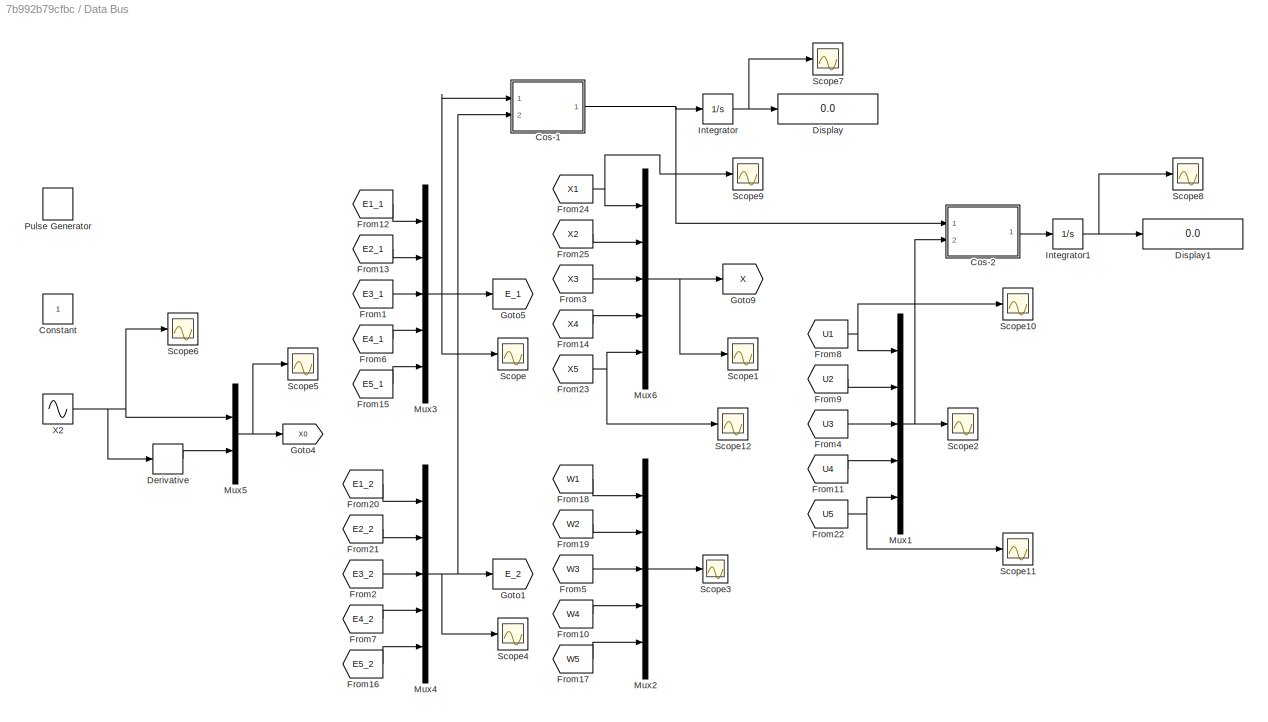
BLOCK [SubSystem] Data Bus 
  Ports = []
  RequestExecContextInheritance = off
BLOCK [Constant] Data Bus /Constant
BLOCK [SubSystem] Data Bus /Cos-1
  ErrorFcn = Stateflow.Translate.translate
  PermitHierarchicalResolution = ExplicitOnly
  Ports = [2, 1]
  RequestExecContextInheritance = off
  SFBlockType = MATLAB Function
  TreatAsAtomicUnit = on
BLOCK [Demux] Data Bus /Cos-1/ Demux 
  Outputs = 1
  Ports = [1, 1]
BLOCK [S-Function] Data Bus /Cos-1/ SFunction 
  EnableBusSupport = on
  FunctionName = sf_sfun
  PortCounts = [2 2]
  Ports = [2, 2]
  SFcnIsStateOwnerBlock = off
  SFunctionDeploymentMode = off
  Tag = Stateflow S-Function CAMFC2_Pendulum_Comp_Lewis 26
BLOCK [Terminator] Data Bus /Cos-1/ Terminator 
BLOCK [Inport] Data Bus /Cos-1/E1
  IconDisplay = Port number
BLOCK [Inport] Data Bus /Cos-1/E2
  IconDisplay = Port number
  Port = 2
BLOCK [Outport] Data Bus /Cos-1/out
  IconDisplay = Port number
BLOCK [SubSystem] Data Bus /Cos-2
  ErrorFcn = Stateflow.Translate.translate
  PermitHierarchicalResolution = ExplicitOnly
  Ports = [2, 1]
  RequestExecContextInheritance = off
  SFBlockType = MATLAB Function
  TreatAsAtomicUnit = on
BLOCK [Demux] Data Bus /Cos-2/ Demux 
  Outputs = 1
  Ports = [1, 1]
BLOCK [S-Function] Data Bus /Cos-2/ SFunction 
  EnableBusSupport = on
  FunctionName = sf_sfun
  PortCounts = [2 2]
  Ports = [2, 2]
  SFcnIsStateOwnerBlock = off
  SFunctionDeploymentMode = off
  Tag = Stateflow S-Function CAMFC2_Pendulum_Comp_Lewis 27
BLOCK [Terminator] Data Bus /Cos-2/ Terminator 
BLOCK [Inport] Data Bus /Cos-2/Es
  IconDisplay = Port number
BLOCK [Inport] Data Bus /Cos-2/U
  IconDisplay = Port number
  Port = 2
BLOCK [Outport] Data Bus /Cos-2/out
  IconDisplay = Port number
BLOCK [Derivative] Data Bus /Derivative
BLOCK [Display] Data Bus /Display
  Decimation = 1
  Ports = [1]
BLOCK [Display] Data Bus /Display1
  Decimation = 1
  Ports = [1]
BLOCK [From] Data Bus /From1
  GotoTag = E3_1
  TagVisibility = global
BLOCK [From] Data Bus /From10
  GotoTag = W4
  TagVisibility = global
BLOCK [From] Data Bus /From11
  GotoTag = U4
  TagVisibility = global
BLOCK [From] Data Bus /From12
  GotoTag = E1_1
  TagVisibility = global
BLOCK [From] Data Bus /From13
  GotoTag = E2_1
  TagVisibility = global
BLOCK [From] Data Bus /From14
  GotoTag = X4
  TagVisibility = global
BLOCK [From] Data Bus /From15
  GotoTag = E5_1
  TagVisibility = global
BLOCK [From] Data Bus /From16
  GotoTag = E5_2
  TagVisibility = global
BLOCK [From] Data Bus /From17
  GotoTag = W5
  TagVisibility = global
BLOCK [From] Data Bus /From18
  GotoTag = W1
  TagVisibility = global
BLOCK [From] Data Bus /From19
  GotoTag = W2
  TagVisibility = global
BLOCK [From] Data Bus /From2
  GotoTag = E3_2
  TagVisibility = global
BLOCK [From] Data Bus /From20
  GotoTag = E1_2
  TagVisibility = global
BLOCK [From] Data Bus /From21
  GotoTag = E2_2
  TagVisibility = global
BLOCK [From] Data Bus /From22
  GotoTag = U5
  TagVisibility = global
BLOCK [From] Data Bus /From23
  GotoTag = X5
  TagVisibility = global
BLOCK [From] Data Bus /From24
  GotoTag = X1
  TagVisibility = global
BLOCK [From] Data Bus /From25
  GotoTag = X2
  TagVisibility = global
BLOCK [From] Data Bus /From3
  GotoTag = X3
  TagVisibility = global
BLOCK [From] Data Bus /From4
  GotoTag = U3
  TagVisibility = global
BLOCK [From] Data Bus /From5
  GotoTag = W3
  TagVisibility = global
BLOCK [From] Data Bus /From6
  GotoTag = E4_1
  TagVisibility = global
BLOCK [From] Data Bus /From7
  GotoTag = E4_2
  TagVisibility = global
BLOCK [From] Data Bus /From8
  GotoTag = U1
  TagVisibility = global
BLOCK [From] Data Bus /From9
  GotoTag = U2
  TagVisibility = global
BLOCK [Goto] Data Bus /Goto1
  GotoTag = E_2
  TagVisibility = global
BLOCK [Goto] Data Bus /Goto4
  GotoTag = X0
  TagVisibility = global
BLOCK [Goto] Data Bus /Goto5
  GotoTag = E_1
  TagVisibility = global
BLOCK [Goto] Data Bus /Goto9
  GotoTag = X
  TagVisibility = global
BLOCK [Integrator] Data Bus /Integrator
  Ports = [1, 1]
BLOCK [Integrator] Data Bus /Integrator1
  Ports = [1, 1]
BLOCK [Mux] Data Bus /Mux1
  DisplayOption = bar
  Inputs = 5
  Ports = [5, 1]
BLOCK [Mux] Data Bus /Mux2
  DisplayOption = bar
  Inputs = 5
  Ports = [5, 1]
BLOCK [Mux] Data Bus /Mux3
  DisplayOption = bar
  Inputs = 5
  Ports = [5, 1]
BLOCK [Mux] Data Bus /Mux4
  DisplayOption = bar
  Inputs = 5
  Ports = [5, 1]
BLOCK [Mux] Data Bus /Mux5
  DisplayOption = bar
  Inputs = 2
  Ports = [2, 1]
BLOCK [Mux] Data Bus /Mux6
  DisplayOption = bar
  Inputs = 5
  Ports = [5, 1]
BLOCK [DiscretePulseGenerator] Data Bus /Pulse Generator
  Amplitude = 2
  Period = 20
  Ports = [0, 1]
  PulseType = Time based
  PulseWidth = 50
BLOCK [Scope] Data Bus /Scope
  Floating = off
  NumInputPorts = 1
  Ports = [1]
  ScopeSpecificationString = Simulink.scopes.TimeScopeBlockCfg('CurrentConfiguration', extmgr.ConfigurationSet(extmgr.Configuration('Core','General UI',true),extmgr.Configuration('Core','Source UI',true),extmgr.Configuration('Sources','WiredSimulink',true,'DataLogging',true,'DataLoggingVariableName','E1_FL','DataLoggingSaveFormat','StructureWithTime'),extmgr.Configuration('Visuals','Time Domain',true,'SerializedDisplays',{str...<+1546ch>
BLOCK [Scope] Data Bus /Scope1
  Floating = off
  NumInputPorts = 1
  Ports = [1]
  ScopeSpecificationString = Simulink.scopes.TimeScopeBlockCfg('CurrentConfiguration', extmgr.ConfigurationSet(extmgr.Configuration('Core','General UI',true),extmgr.Configuration('Core','Source UI',true),extmgr.Configuration('Sources','WiredSimulink',true,'DataLoggingVariableName','x_FL','DataLogging',true,'DataLoggingSaveFormat','StructureWithTime'),extmgr.Configuration('Visuals','Time Domain',true,'SerializedDisplays',{stru...<+1704ch>
BLOCK [Scope] Data Bus /Scope10
  Floating = off
  NumInputPorts = 1
  Ports = [1]
  ScopeSpecificationString = Simulink.scopes.TimeScopeBlockCfg('CurrentConfiguration', extmgr.ConfigurationSet(extmgr.Configuration('Core','General UI',true),extmgr.Configuration('Core','Source UI',true),extmgr.Configuration('Sources','WiredSimulink',true,'DataLoggingVariableName','ScopeData2','DataLoggingDecimateData',true,'DataLoggingDecimation','1','DataLoggingSaveFormat','StructureWithTime'),extmgr.Configuration('Visuals'...<+1569ch>
BLOCK [Scope] Data Bus /Scope11
  Floating = off
  NumInputPorts = 1
  Ports = [1]
  ScopeSpecificationString = Simulink.scopes.TimeScopeBlockCfg('CurrentConfiguration', extmgr.ConfigurationSet(extmgr.Configuration('Core','General UI',true),extmgr.Configuration('Core','Source UI',true),extmgr.Configuration('Sources','WiredSimulink',true,'DataLoggingVariableName','ScopeData3','DataLoggingDecimateData',true,'DataLoggingDecimation','1','DataLoggingSaveFormat','StructureWithTime'),extmgr.Configuration('Visuals'...<+1569ch>
BLOCK [Scope] Data Bus /Scope12
  Floating = off
  NumInputPorts = 1
  Ports = [1]
  ScopeSpecificationString = Simulink.scopes.TimeScopeBlockCfg('CurrentConfiguration', extmgr.ConfigurationSet(extmgr.Configuration('Core','General UI',true),extmgr.Configuration('Core','Source UI',true),extmgr.Configuration('Sources','WiredSimulink',true,'DataLoggingVariableName','ScopeData4','DataLoggingDecimateData',true,'DataLoggingDecimation','1','DataLoggingSaveFormat','StructureWithTime'),extmgr.Configuration('Visuals'...<+1607ch>
BLOCK [Scope] Data Bus /Scope2
  Floating = off
  NumInputPorts = 1
  Ports = [1]
  ScopeSpecificationString = Simulink.scopes.TimeScopeBlockCfg('CurrentConfiguration', extmgr.ConfigurationSet(extmgr.Configuration('Core','General UI',true),extmgr.Configuration('Core','Source UI',true),extmgr.Configuration('Sources','WiredSimulink',true,'DataLoggingVariableName','u_FL','DataLogging',true,'DataLoggingDecimateData',true,'DataLoggingDecimation','1','DataLoggingSaveFormat','StructureWithTime'),extmgr.Configurat...<+1596ch>
BLOCK [Scope] Data Bus /Scope3
  Floating = off
  NumInputPorts = 1
  Ports = [1]
  ScopeSpecificationString = Simulink.scopes.TimeScopeBlockCfg('CurrentConfiguration', extmgr.ConfigurationSet(extmgr.Configuration('Core','General UI',true),extmgr.Configuration('Core','Source UI',true),extmgr.Configuration('Sources','WiredSimulink',true,'DataLoggingVariableName','ScopeData3'),extmgr.Configuration('Visuals','Time Domain',true,'SerializedDisplays',{struct('MinYLimReal','0.01052','MaxYLimReal','0.03426','YLabe...<+1707ch>
BLOCK [Scope] Data Bus /Scope4
  Floating = off
  NumInputPorts = 1
  Ports = [1]
  ScopeSpecificationString = Simulink.scopes.TimeScopeBlockCfg('CurrentConfiguration', extmgr.ConfigurationSet(extmgr.Configuration('Core','General UI',true),extmgr.Configuration('Core','Source UI',true),extmgr.Configuration('Sources','WiredSimulink',true,'DataLoggingVariableName','ScopeData1'),extmgr.Configuration('Visuals','Time Domain',true,'SerializedDisplays',{struct('MinYLimReal','-29.58514','MaxYLimReal','25.85526','YL...<+1473ch>
BLOCK [Scope] Data Bus /Scope5
  Floating = off
  NumInputPorts = 1
  Ports = [1]
  ScopeSpecificationString = Simulink.scopes.TimeScopeBlockCfg('CurrentConfiguration', extmgr.ConfigurationSet(extmgr.Configuration('Core','General UI',true),extmgr.Configuration('Core','Source UI',true),extmgr.Configuration('Sources','WiredSimulink',true,'DataLoggingVariableName','ScopeData2'),extmgr.Configuration('Visuals','Time Domain',true,'SerializedDisplays',{struct('MinYLimReal','-1.25','MaxYLimReal','1.25','YLabelReal...<+1381ch>
BLOCK [Scope] Data Bus /Scope6
  Floating = off
  NumInputPorts = 1
  Ports = [1]
  ScopeSpecificationString = Simulink.scopes.TimeScopeBlockCfg('CurrentConfiguration', extmgr.ConfigurationSet(extmgr.Configuration('Core','General UI',true),extmgr.Configuration('Core','Source UI',true),extmgr.Configuration('Sources','WiredSimulink',true,'DataLoggingVariableName','x_d','DataLogging',true,'DataLoggingSaveFormat','StructureWithTime'),extmgr.Configuration('Visuals','Time Domain',true,'SerializedDisplays',{struc...<+1442ch>
BLOCK [Scope] Data Bus /Scope7
  Floating = off
  NumInputPorts = 1
  Ports = [1]
  ScopeSpecificationString = Simulink.scopes.TimeScopeBlockCfg('CurrentConfiguration', extmgr.ConfigurationSet(extmgr.Configuration('Core','General UI',true),extmgr.Configuration('Core','Source UI',true),extmgr.Configuration('Sources','WiredSimulink',true,'DataLoggingVariableName','ScopeData1','DataLoggingSaveFormat','StructureWithTime'),extmgr.Configuration('Visuals','Time Domain',true,'SerializedDisplays',{struct('MinYLimRe...<+1494ch>
BLOCK [Scope] Data Bus /Scope8
  Floating = off
  NumInputPorts = 1
  Ports = [1]
  ScopeSpecificationString = Simulink.scopes.TimeScopeBlockCfg('CurrentConfiguration', extmgr.ConfigurationSet(extmgr.Configuration('Core','General UI',true),extmgr.Configuration('Core','Source UI',true),extmgr.Configuration('Sources','WiredSimulink',true,'DataLoggingVariableName','ScopeData2','DataLoggingSaveFormat','StructureWithTime'),extmgr.Configuration('Visuals','Time Domain',true,'SerializedDisplays',{struct('MinYLimRe...<+1495ch>
BLOCK [Scope] Data Bus /Scope9
  Floating = off
  NumInputPorts = 1
  Ports = [1]
  ScopeSpecificationString = Simulink.scopes.TimeScopeBlockCfg('CurrentConfiguration', extmgr.ConfigurationSet(extmgr.Configuration('Core','General UI',true),extmgr.Configuration('Core','Source UI',true),extmgr.Configuration('Sources','WiredSimulink',true,'DataLoggingVariableName','ScopeData1','DataLoggingDecimateData',true,'DataLoggingDecimation','1','DataLoggingSaveFormat','StructureWithTime'),extmgr.Configuration('Visuals'...<+1594ch>
BLOCK [Sin] Data Bus /X2
  Amplitude = 3
  Frequency = 0.5
  Ports = [0, 1]
  SampleTime = 0
NET Agent #1/Agent #:1 -> Agent #1/Decenteralized Cooperaive Controller #1:1, Agent #1/Module to compute Consensus Error #1:3
LINE Agent #1/Decenteralized Cooperaive Controller #1/ANN Tuning:1 -> Agent #1/Decenteralized Cooperaive Controller #1/Integrator:1
NET Agent #1/Decenteralized Cooperaive Controller #1/Agent #:1 -> Agent #1/Decenteralized Cooperaive Controller #1/ANN Tuning:4, Agent #1/Decenteralized Cooperaive Controller #1/Controller:5
LINE Agent #1/Decenteralized Cooperaive Controller #1/Clock:1 -> Agent #1/Decenteralized Cooperaive Controller #1/Regressors:1
LINE Agent #1/Decenteralized Cooperaive Controller #1/Controller:1 -> Agent #1/Decenteralized Cooperaive Controller #1/U1:1
LINE Agent #1/Decenteralized Cooperaive Controller #1/From1:1 -> Agent #1/Decenteralized Cooperaive Controller #1/Gain:1
LINE Agent #1/Decenteralized Cooperaive Controller #1/From2:1 -> Agent #1/Decenteralized Cooperaive Controller #1/Regressors:2
NET Agent #1/Decenteralized Cooperaive Controller #1/From3:1 -> Agent #1/Decenteralized Cooperaive Controller #1/Controller:2, Agent #1/Decenteralized Cooperaive Controller #1/Sum:2
LINE Agent #1/Decenteralized Cooperaive Controller #1/Gain:1 -> Agent #1/Decenteralized Cooperaive Controller #1/Sum:1
NET Agent #1/Decenteralized Cooperaive Controller #1/Integrator:1 -> Agent #1/Decenteralized Cooperaive Controller #1/ANN Tuning:2, Agent #1/Decenteralized Cooperaive Controller #1/Controller:3, Agent #1/Decenteralized Cooperaive Controller #1/Goto2:1
NET Agent #1/Decenteralized Cooperaive Controller #1/Regressors:1 -> Agent #1/Decenteralized Cooperaive Controller #1/ANN Tuning:3, Agent #1/Decenteralized Cooperaive Controller #1/Controller:4
NET Agent #1/Decenteralized Cooperaive Controller #1/Sum:1 -> Agent #1/Decenteralized Cooperaive Controller #1/ANN Tuning:1, Agent #1/Decenteralized Cooperaive Controller #1/Controller:1
NET Agent #1/Decenteralized Cooperaive Controller #1:1 -> Agent #1/Goto2:1, Agent #1/Pendulum Plant:1
LINE Agent #1/From1:1 -> Agent #1/Module to compute Consensus Error #1:1
LINE Agent #1/From:1 -> Agent #1/Module to compute Consensus Error #1:2
LINE Agent #1/Module to compute Consensus Error #1:1 -> Agent #1/Goto:1
LINE Agent #1/Module to compute Consensus Error #1:2 -> Agent #1/Goto3:1
LINE Agent #1/Pendulum Plant/Plant/Clock:1 -> Agent #1/Pendulum Plant/Plant/Plant:4
NET Agent #1/Pendulum Plant/Plant/Integrator1:1 -> Agent #1/Pendulum Plant/Plant/Mux:2, Agent #1/Pendulum Plant/Plant/Plant:2
NET Agent #1/Pendulum Plant/Plant/Integrator:1 -> Agent #1/Pendulum Plant/Plant/Mux:1, Agent #1/Pendulum Plant/Plant/Plant:1
NET Agent #1/Pendulum Plant/Plant/Mux:1 -> Agent #1/Pendulum Plant/Plant/Scope3:1, Agent #1/Pendulum Plant/Plant/Y:1
LINE Agent #1/Pendulum Plant/Plant/Plant:1 -> Agent #1/Pendulum Plant/Plant/Integrator:1
LINE Agent #1/Pendulum Plant/Plant/Plant:2 -> Agent #1/Pendulum Plant/Plant/Integrator1:1
LINE Agent #1/Pendulum Plant/Plant/U:1 -> Agent #1/Pendulum Plant/Plant/Plant:3
LINE Agent #1/Pendulum Plant/Plant:1 -> Agent #1/Pendulum Plant/Y:1
LINE Agent #1/Pendulum Plant/U:1 -> Agent #1/Pendulum Plant/Plant:1
LINE Agent #1/Pendulum Plant:1 -> Agent #1/Goto1:1
NET Agent #2/Agent #:1 -> Agent #2/Decenteralized Cooperaive Controller #2:1, Agent #2/Module to compute Consensus Error #2:3
LINE Agent #2/Decenteralized Cooperaive Controller #2/ANN Tuning:1 -> Agent #2/Decenteralized Cooperaive Controller #2/Integrator:1
NET Agent #2/Decenteralized Cooperaive Controller #2/Agent #:1 -> Agent #2/Decenteralized Cooperaive Controller #2/ANN Tuning:4, Agent #2/Decenteralized Cooperaive Controller #2/Controller:5
LINE Agent #2/Decenteralized Cooperaive Controller #2/Clock:1 -> Agent #2/Decenteralized Cooperaive Controller #2/Regressors:1
LINE Agent #2/Decenteralized Cooperaive Controller #2/Controller:1 -> Agent #2/Decenteralized Cooperaive Controller #2/U2:1
LINE Agent #2/Decenteralized Cooperaive Controller #2/From1:1 -> Agent #2/Decenteralized Cooperaive Controller #2/Gain:1
LINE Agent #2/Decenteralized Cooperaive Controller #2/From2:1 -> Agent #2/Decenteralized Cooperaive Controller #2/Regressors:2
NET Agent #2/Decenteralized Cooperaive Controller #2/From3:1 -> Agent #2/Decenteralized Cooperaive Controller #2/Controller:2, Agent #2/Decenteralized Cooperaive Controller #2/Sum:2
LINE Agent #2/Decenteralized Cooperaive Controller #2/Gain:1 -> Agent #2/Decenteralized Cooperaive Controller #2/Sum:1
NET Agent #2/Decenteralized Cooperaive Controller #2/Integrator:1 -> Agent #2/Decenteralized Cooperaive Controller #2/ANN Tuning:2, Agent #2/Decenteralized Cooperaive Controller #2/Controller:3, Agent #2/Decenteralized Cooperaive Controller #2/Goto2:1
NET Agent #2/Decenteralized Cooperaive Controller #2/Regressors:1 -> Agent #2/Decenteralized Cooperaive Controller #2/ANN Tuning:3, Agent #2/Decenteralized Cooperaive Controller #2/Controller:4
NET Agent #2/Decenteralized Cooperaive Controller #2/Sum:1 -> Agent #2/Decenteralized Cooperaive Controller #2/ANN Tuning:1, Agent #2/Decenteralized Cooperaive Controller #2/Controller:1
NET Agent #2/Decenteralized Cooperaive Controller #2:1 -> Agent #2/Goto2:1, Agent #2/Pendulum Plant:1
LINE Agent #2/From1:1 -> Agent #2/Module to compute Consensus Error #2:1
LINE Agent #2/From:1 -> Agent #2/Module to compute Consensus Error #2:2
LINE Agent #2/Module to compute Consensus Error #2:1 -> Agent #2/Goto:1
LINE Agent #2/Module to compute Consensus Error #2:2 -> Agent #2/Goto3:1
LINE Agent #2/Pendulum Plant/Plant/Clock:1 -> Agent #2/Pendulum Plant/Plant/Plant:4
NET Agent #2/Pendulum Plant/Plant/Integrator1:1 -> Agent #2/Pendulum Plant/Plant/Mux:2, Agent #2/Pendulum Plant/Plant/Plant:2
NET Agent #2/Pendulum Plant/Plant/Integrator:1 -> Agent #2/Pendulum Plant/Plant/Mux:1, Agent #2/Pendulum Plant/Plant/Plant:1
NET Agent #2/Pendulum Plant/Plant/Mux:1 -> Agent #2/Pendulum Plant/Plant/Scope3:1, Agent #2/Pendulum Plant/Plant/Y:1
LINE Agent #2/Pendulum Plant/Plant/Plant:1 -> Agent #2/Pendulum Plant/Plant/Integrator:1
LINE Agent #2/Pendulum Plant/Plant/Plant:2 -> Agent #2/Pendulum Plant/Plant/Integrator1:1
LINE Agent #2/Pendulum Plant/Plant/U:1 -> Agent #2/Pendulum Plant/Plant/Plant:3
LINE Agent #2/Pendulum Plant/Plant:1 -> Agent #2/Pendulum Plant/Y:1
LINE Agent #2/Pendulum Plant/U:1 -> Agent #2/Pendulum Plant/Plant:1
LINE Agent #2/Pendulum Plant:1 -> Agent #2/Goto1:1
NET Agent #3/Agent #:1 -> Agent #3/Decenteralized Cooperaive Controller #3:1, Agent #3/Module to compute Consensus Error #3:3
LINE Agent #3/Decenteralized Cooperaive Controller #3/ANN Tuning:1 -> Agent #3/Decenteralized Cooperaive Controller #3/Integrator:1
NET Agent #3/Decenteralized Cooperaive Controller #3/Agent #:1 -> Agent #3/Decenteralized Cooperaive Controller #3/ANN Tuning:4, Agent #3/Decenteralized Cooperaive Controller #3/Controller:5
LINE Agent #3/Decenteralized Cooperaive Controller #3/Clock:1 -> Agent #3/Decenteralized Cooperaive Controller #3/Regressors:1
LINE Agent #3/Decenteralized Cooperaive Controller #3/Controller:1 -> Agent #3/Decenteralized Cooperaive Controller #3/U3:1
LINE Agent #3/Decenteralized Cooperaive Controller #3/From1:1 -> Agent #3/Decenteralized Cooperaive Controller #3/Gain:1
LINE Agent #3/Decenteralized Cooperaive Controller #3/From2:1 -> Agent #3/Decenteralized Cooperaive Controller #3/Regressors:2
NET Agent #3/Decenteralized Cooperaive Controller #3/From3:1 -> Agent #3/Decenteralized Cooperaive Controller #3/Controller:2, Agent #3/Decenteralized Cooperaive Controller #3/Sum:2
LINE Agent #3/Decenteralized Cooperaive Controller #3/Gain:1 -> Agent #3/Decenteralized Cooperaive Controller #3/Sum:1
NET Agent #3/Decenteralized Cooperaive Controller #3/Integrator:1 -> Agent #3/Decenteralized Cooperaive Controller #3/ANN Tuning:2, Agent #3/Decenteralized Cooperaive Controller #3/Controller:3, Agent #3/Decenteralized Cooperaive Controller #3/Goto2:1
NET Agent #3/Decenteralized Cooperaive Controller #3/Regressors:1 -> Agent #3/Decenteralized Cooperaive Controller #3/ANN Tuning:3, Agent #3/Decenteralized Cooperaive Controller #3/Controller:4
NET Agent #3/Decenteralized Cooperaive Controller #3/Sum:1 -> Agent #3/Decenteralized Cooperaive Controller #3/ANN Tuning:1, Agent #3/Decenteralized Cooperaive Controller #3/Controller:1
NET Agent #3/Decenteralized Cooperaive Controller #3:1 -> Agent #3/Goto2:1, Agent #3/Pendulum Plant:1
LINE Agent #3/From1:1 -> Agent #3/Module to compute Consensus Error #3:1
LINE Agent #3/From:1 -> Agent #3/Module to compute Consensus Error #3:2
LINE Agent #3/Module to compute Consensus Error #3:1 -> Agent #3/Goto:1
LINE Agent #3/Module to compute Consensus Error #3:2 -> Agent #3/Goto3:1
LINE Agent #3/Pendulum Plant/Plant/Clock:1 -> Agent #3/Pendulum Plant/Plant/Plant:4
NET Agent #3/Pendulum Plant/Plant/Integrator1:1 -> Agent #3/Pendulum Plant/Plant/Mux:2, Agent #3/Pendulum Plant/Plant/Plant:2
NET Agent #3/Pendulum Plant/Plant/Integrator:1 -> Agent #3/Pendulum Plant/Plant/Mux:1, Agent #3/Pendulum Plant/Plant/Plant:1
NET Agent #3/Pendulum Plant/Plant/Mux:1 -> Agent #3/Pendulum Plant/Plant/Scope3:1, Agent #3/Pendulum Plant/Plant/Y:1
LINE Agent #3/Pendulum Plant/Plant/Plant:1 -> Agent #3/Pendulum Plant/Plant/Integrator:1
LINE Agent #3/Pendulum Plant/Plant/Plant:2 -> Agent #3/Pendulum Plant/Plant/Integrator1:1
LINE Agent #3/Pendulum Plant/Plant/U:1 -> Agent #3/Pendulum Plant/Plant/Plant:3
LINE Agent #3/Pendulum Plant/Plant:1 -> Agent #3/Pendulum Plant/Y:1
LINE Agent #3/Pendulum Plant/U:1 -> Agent #3/Pendulum Plant/Plant:1
LINE Agent #3/Pendulum Plant:1 -> Agent #3/Goto1:1
NET Agent #4/Agent #:1 -> Agent #4/Decenteralized Cooperaive Controller #4:1, Agent #4/Module to compute Consensus Error #4:3
LINE Agent #4/Decenteralized Cooperaive Controller #4/ANN Tuning:1 -> Agent #4/Decenteralized Cooperaive Controller #4/Integrator:1
NET Agent #4/Decenteralized Cooperaive Controller #4/Agent #:1 -> Agent #4/Decenteralized Cooperaive Controller #4/ANN Tuning:4, Agent #4/Decenteralized Cooperaive Controller #4/Controller:5
LINE Agent #4/Decenteralized Cooperaive Controller #4/Clock:1 -> Agent #4/Decenteralized Cooperaive Controller #4/Regressors:1
LINE Agent #4/Decenteralized Cooperaive Controller #4/Controller:1 -> Agent #4/Decenteralized Cooperaive Controller #4/U4:1
LINE Agent #4/Decenteralized Cooperaive Controller #4/From1:1 -> Agent #4/Decenteralized Cooperaive Controller #4/Gain:1
LINE Agent #4/Decenteralized Cooperaive Controller #4/From2:1 -> Agent #4/Decenteralized Cooperaive Controller #4/Regressors:2
NET Agent #4/Decenteralized Cooperaive Controller #4/From3:1 -> Agent #4/Decenteralized Cooperaive Controller #4/Controller:2, Agent #4/Decenteralized Cooperaive Controller #4/Sum:2
LINE Agent #4/Decenteralized Cooperaive Controller #4/Gain:1 -> Agent #4/Decenteralized Cooperaive Controller #4/Sum:1
NET Agent #4/Decenteralized Cooperaive Controller #4/Integrator:1 -> Agent #4/Decenteralized Cooperaive Controller #4/ANN Tuning:2, Agent #4/Decenteralized Cooperaive Controller #4/Controller:3, Agent #4/Decenteralized Cooperaive Controller #4/Goto2:1
NET Agent #4/Decenteralized Cooperaive Controller #4/Regressors:1 -> Agent #4/Decenteralized Cooperaive Controller #4/ANN Tuning:3, Agent #4/Decenteralized Cooperaive Controller #4/Controller:4
NET Agent #4/Decenteralized Cooperaive Controller #4/Sum:1 -> Agent #4/Decenteralized Cooperaive Controller #4/ANN Tuning:1, Agent #4/Decenteralized Cooperaive Controller #4/Controller:1
NET Agent #4/Decenteralized Cooperaive Controller #4:1 -> Agent #4/Goto2:1, Agent #4/Pendulum Plant:1
LINE Agent #4/From1:1 -> Agent #4/Module to compute Consensus Error #4:1
LINE Agent #4/From:1 -> Agent #4/Module to compute Consensus Error #4:2
LINE Agent #4/Module to compute Consensus Error #4:1 -> Agent #4/Goto:1
LINE Agent #4/Module to compute Consensus Error #4:2 -> Agent #4/Goto3:1
LINE Agent #4/Pendulum Plant/Plant/Clock:1 -> Agent #4/Pendulum Plant/Plant/Plant:4
NET Agent #4/Pendulum Plant/Plant/Integrator1:1 -> Agent #4/Pendulum Plant/Plant/Mux:2, Agent #4/Pendulum Plant/Plant/Plant:2
NET Agent #4/Pendulum Plant/Plant/Integrator:1 -> Agent #4/Pendulum Plant/Plant/Mux:1, Agent #4/Pendulum Plant/Plant/Plant:1
NET Agent #4/Pendulum Plant/Plant/Mux:1 -> Agent #4/Pendulum Plant/Plant/Scope3:1, Agent #4/Pendulum Plant/Plant/Y:1
LINE Agent #4/Pendulum Plant/Plant/Plant:1 -> Agent #4/Pendulum Plant/Plant/Integrator:1
LINE Agent #4/Pendulum Plant/Plant/Plant:2 -> Agent #4/Pendulum Plant/Plant/Integrator1:1
LINE Agent #4/Pendulum Plant/Plant/U:1 -> Agent #4/Pendulum Plant/Plant/Plant:3
LINE Agent #4/Pendulum Plant/Plant:1 -> Agent #4/Pendulum Plant/Y:1
LINE Agent #4/Pendulum Plant/U:1 -> Agent #4/Pendulum Plant/Plant:1
LINE Agent #4/Pendulum Plant:1 -> Agent #4/Goto1:1
NET Agent #5/Agent #:1 -> Agent #5/Decenteralized Cooperaive Controller #5:1, Agent #5/Module to compute Consensus Error #5:3
LINE Agent #5/Decenteralized Cooperaive Controller #5/ANN Tuning:1 -> Agent #5/Decenteralized Cooperaive Controller #5/Integrator:1
NET Agent #5/Decenteralized Cooperaive Controller #5/Agent #:1 -> Agent #5/Decenteralized Cooperaive Controller #5/ANN Tuning:4, Agent #5/Decenteralized Cooperaive Controller #5/Controller:5
LINE Agent #5/Decenteralized Cooperaive Controller #5/Clock:1 -> Agent #5/Decenteralized Cooperaive Controller #5/Regressors:1
LINE Agent #5/Decenteralized Cooperaive Controller #5/Controller:1 -> Agent #5/Decenteralized Cooperaive Controller #5/U5:1
LINE Agent #5/Decenteralized Cooperaive Controller #5/From1:1 -> Agent #5/Decenteralized Cooperaive Controller #5/Gain:1
LINE Agent #5/Decenteralized Cooperaive Controller #5/From2:1 -> Agent #5/Decenteralized Cooperaive Controller #5/Regressors:2
NET Agent #5/Decenteralized Cooperaive Controller #5/From3:1 -> Agent #5/Decenteralized Cooperaive Controller #5/Controller:2, Agent #5/Decenteralized Cooperaive Controller #5/Sum:2
LINE Agent #5/Decenteralized Cooperaive Controller #5/Gain:1 -> Agent #5/Decenteralized Cooperaive Controller #5/Sum:1
NET Agent #5/Decenteralized Cooperaive Controller #5/Integrator:1 -> Agent #5/Decenteralized Cooperaive Controller #5/ANN Tuning:2, Agent #5/Decenteralized Cooperaive Controller #5/Controller:3, Agent #5/Decenteralized Cooperaive Controller #5/Goto2:1
NET Agent #5/Decenteralized Cooperaive Controller #5/Regressors:1 -> Agent #5/Decenteralized Cooperaive Controller #5/ANN Tuning:3, Agent #5/Decenteralized Cooperaive Controller #5/Controller:4
NET Agent #5/Decenteralized Cooperaive Controller #5/Sum:1 -> Agent #5/Decenteralized Cooperaive Controller #5/ANN Tuning:1, Agent #5/Decenteralized Cooperaive Controller #5/Controller:1
NET Agent #5/Decenteralized Cooperaive Controller #5:1 -> Agent #5/Goto2:1, Agent #5/Pendulum Plant:1
LINE Agent #5/From1:1 -> Agent #5/Module to compute Consensus Error #5:1
LINE Agent #5/From:1 -> Agent #5/Module to compute Consensus Error #5:2
LINE Agent #5/Module to compute Consensus Error #5:1 -> Agent #5/Goto:1
LINE Agent #5/Module to compute Consensus Error #5:2 -> Agent #5/Goto3:1
LINE Agent #5/Pendulum Plant/Plant/Clock:1 -> Agent #5/Pendulum Plant/Plant/Plant:4
NET Agent #5/Pendulum Plant/Plant/Integrator1:1 -> Agent #5/Pendulum Plant/Plant/Mux:2, Agent #5/Pendulum Plant/Plant/Plant:2
NET Agent #5/Pendulum Plant/Plant/Integrator:1 -> Agent #5/Pendulum Plant/Plant/Mux:1, Agent #5/Pendulum Plant/Plant/Plant:1
NET Agent #5/Pendulum Plant/Plant/Mux:1 -> Agent #5/Pendulum Plant/Plant/Scope3:1, Agent #5/Pendulum Plant/Plant/Y:1
LINE Agent #5/Pendulum Plant/Plant/Plant:1 -> Agent #5/Pendulum Plant/Plant/Integrator:1
LINE Agent #5/Pendulum Plant/Plant/Plant:2 -> Agent #5/Pendulum Plant/Plant/Integrator1:1
LINE Agent #5/Pendulum Plant/Plant/U:1 -> Agent #5/Pendulum Plant/Plant/Plant:3
LINE Agent #5/Pendulum Plant/Plant:1 -> Agent #5/Pendulum Plant/Y:1
LINE Agent #5/Pendulum Plant/U:1 -> Agent #5/Pendulum Plant/Plant:1
LINE Agent #5/Pendulum Plant:1 -> Agent #5/Goto1:1
NET Data Bus /Cos-1:1 -> Data Bus /Cos-2:1, Data Bus /Integrator:1
LINE Data Bus /Cos-2:1 -> Data Bus /Integrator1:1
LINE Data Bus /Derivative:1 -> Data Bus /Mux5:2
LINE Data Bus /From10:1 -> Data Bus /Mux2:4
LINE Data Bus /From11:1 -> Data Bus /Mux1:4
LINE Data Bus /From12:1 -> Data Bus /Mux3:1
LINE Data Bus /From13:1 -> Data Bus /Mux3:2
LINE Data Bus /From14:1 -> Data Bus /Mux6:4
LINE Data Bus /From15:1 -> Data Bus /Mux3:5
LINE Data Bus /From16:1 -> Data Bus /Mux4:5
LINE Data Bus /From17:1 -> Data Bus /Mux2:5
LINE Data Bus /From18:1 -> Data Bus /Mux2:1
LINE Data Bus /From19:1 -> Data Bus /Mux2:2
LINE Data Bus /From1:1 -> Data Bus /Mux3:3
LINE Data Bus /From20:1 -> Data Bus /Mux4:1
LINE Data Bus /From21:1 -> Data Bus /Mux4:2
NET Data Bus /From22:1 -> Data Bus /Mux1:5, Data Bus /Scope11:1
NET Data Bus /From23:1 -> Data Bus /Mux6:5, Data Bus /Scope12:1
NET Data Bus /From24:1 -> Data Bus /Mux6:1, Data Bus /Scope9:1
LINE Data Bus /From25:1 -> Data Bus /Mux6:2
LINE Data Bus /From2:1 -> Data Bus /Mux4:3
LINE Data Bus /From3:1 -> Data Bus /Mux6:3
LINE Data Bus /From4:1 -> Data Bus /Mux1:3
LINE Data Bus /From5:1 -> Data Bus /Mux2:3
LINE Data Bus /From6:1 -> Data Bus /Mux3:4
LINE Data Bus /From7:1 -> Data Bus /Mux4:4
NET Data Bus /From8:1 -> Data Bus /Mux1:1, Data Bus /Scope10:1
LINE Data Bus /From9:1 -> Data Bus /Mux1:2
NET Data Bus /Integrator1:1 -> Data Bus /Display1:1, Data Bus /Scope8:1
NET Data Bus /Integrator:1 -> Data Bus /Display:1, Data Bus /Scope7:1
NET Data Bus /Mux1:1 -> Data Bus /Cos-2:2, Data Bus /Scope2:1
LINE Data Bus /Mux2:1 -> Data Bus /Scope3:1
NET Data Bus /Mux3:1 -> Data Bus /Cos-1:1, Data Bus /Goto5:1, Data Bus /Scope:1
NET Data Bus /Mux4:1 -> Data Bus /Cos-1:2, Data Bus /Goto1:1, Data Bus /Scope4:1
NET Data Bus /Mux5:1 -> Data Bus /Goto4:1, Data Bus /Scope5:1
NET Data Bus /Mux6:1 -> Data Bus /Goto9:1, Data Bus /Scope1:1
NET Data Bus /X2:1 -> Data Bus /Derivative:1, Data Bus /Mux5:1, Data Bus /Scope6:1
note: NET lines group one-source signal fan-out (src -> all destinations, sorted); 1:1 wires keep LINE
CHART Agent #2/Decenteralized Cooperaive Controller #2/ANN Tuning states=1 transitions=1
  STATE_LABEL 'eML_blk_kernel()'
  STATE_LABEL "SCRIPT:\nfunction DW = fcn(F,r,W,Phi, P, DN, BN, k,Agent_Num)\n\nDW = -F * Phi * r' * P(Agent_Num,Agent_Num) * (DN(Agent_Num,Agent_Num)+BN(Agent_Num,Agent_Num)) - k * F * W;\n\nend\n"
CHART Agent #2/Decenteralized Cooperaive Controller #2/Controller states=1 transitions=1
  STATE_LABEL 'eML_blk_kernel()'
  STATE_LABEL "SCRIPT:\nfunction u = fcn(r,e2,W,Phi,Agent_Num, c, lambda, BN, DN)\n\nu = (c*r) - (W' * Phi) + ( lambda / (DN(Agent_Num,Agent_Num)+BN(Agent_Num,Agent_Num)) * (e2) );\n\nend\n"
CHART Agent #2/Decenteralized Cooperaive Controller #2/Regressors states=1 transitions=1
  STATE_LABEL 'eML_blk_kernel()'
  STATE_LABEL 'SCRIPT:\nfunction Phi = fcn(t,x, k_NN, NN)\n\nPhi = [(1/(1+exp(-k_NN*t)));(1/(1+exp(-k_NN*t)));(1/(1+exp(-k_NN*t)));(1/(1+exp(-k_NN*t)))]; %[1;x(1);(x(1)^2)];%;(x^3)];\n\nend\n'
CHART Agent #2/Module to compute Consensus Error #2 states=1 transitions=1
  STATE_LABEL 'eML_blk_kernel()'
  STATE_LABEL 'SCRIPT:\nfunction [Ep1,Ep2] = fcn(X,X0,AN,BN,N,n,Agent_Num)\n\nXp1 = zeros(1,N);\nXp2 = zeros(1,N);\nfor i=1:N\n    Xp1(1,i) = X((i-1)*n+1);\n    Xp2(1,i) = X((i*n));\nend\n\n%% ---------------------------------------------------------------\n\nXp1_own = Xp1(1,Agent_Num);\nXp2_own = Xp2(1,Agent_Num);\n\nXp01 = X0(1);\nXp02 = X0(2);\n\nEp1 = ( BN(Agent_Num,Agent_Num)*(Xp01 - Xp1_own) );\nEp2 = ( BN(Agent_Num,Agent_Nu...<+212ch>'  <repeated x5 — deduplicated; at blocks: Module to compute Consensus Error #2, Module to compute Consensus Error #3, Module to compute Consensus Error #4, Module to compute Consensus Error #1, Module to compute Consensus Error #5>
CHART Agent #2/Pendulum Plant/Plant/Plant states=1 transitions=1
  STATE_LABEL 'eML_blk_kernel()'
  STATE_LABEL 'SCRIPT:\nfunction [Dx1,Dx2]  = fcn(x1,x2,u,t,Jp, Bp, Mp, ge, lp, Disturb_Val, Disturb_Freq)\n\nDx1 = x2;\nDx2 = (1/Jp) * (u - Bp*x2 - Mp*ge*lp*sin(x1) + (Disturb_Val*sin(Disturb_Freq*t)));\n\nend'  <repeated x5 — deduplicated; at blocks: Plant>
CHART Agent #3/Decenteralized Cooperaive Controller #3/ANN Tuning states=1 transitions=1
  STATE_LABEL 'eML_blk_kernel()'
  STATE_LABEL "SCRIPT:\nfunction DW = fcn(F,r,W,Phi, P, DN, BN, k,Agent_Num)\n\nDW = -F * Phi * r' * P(Agent_Num,Agent_Num) * (DN(Agent_Num,Agent_Num)+BN(Agent_Num,Agent_Num)) - k * F * W;\n\nend\n"
CHART Agent #3/Decenteralized Cooperaive Controller #3/Controller states=1 transitions=1
  STATE_LABEL 'eML_blk_kernel()'
  STATE_LABEL "SCRIPT:\nfunction u = fcn(r,e2,W,Phi,Agent_Num, c, lambda, BN, DN)\n\nu = (c*r) - (W' * Phi) + ( lambda / (DN(Agent_Num,Agent_Num)+BN(Agent_Num,Agent_Num)) * (e2) );\n\nend\n"
CHART Agent #3/Decenteralized Cooperaive Controller #3/Regressors states=1 transitions=1
  STATE_LABEL 'eML_blk_kernel()'
  STATE_LABEL 'SCRIPT:\nfunction Phi = fcn(t,x, k_NN, NN)\n\nPhi = [(1/(1+exp(-k_NN*t)));(1/(1+exp(-k_NN*t)));(1/(1+exp(-k_NN*t)));(1/(1+exp(-k_NN*t)))]; %[1;x(1);(x(1)^2)];%;(x^3)];\n\nend\n'
CHART Agent #3/Module to compute Consensus Error #3 states=1 transitions=1
  STATE_LABEL 'eML_blk_kernel()'
CHART Agent #3/Pendulum Plant/Plant/Plant states=1 transitions=1
  STATE_LABEL 'eML_blk_kernel()'
CHART Agent #4/Decenteralized Cooperaive Controller #4/ANN Tuning states=1 transitions=1
  STATE_LABEL 'eML_blk_kernel()'
  STATE_LABEL "SCRIPT:\nfunction DW = fcn(F,r,W,Phi, P, DN, BN, k,Agent_Num)\n\nDW = -F * Phi * r' * P(Agent_Num,Agent_Num) * (DN(Agent_Num,Agent_Num)+BN(Agent_Num,Agent_Num)) - k * F * W;\n\nend\n"
CHART Agent #4/Decenteralized Cooperaive Controller #4/Controller states=1 transitions=1
  STATE_LABEL 'eML_blk_kernel()'
  STATE_LABEL "SCRIPT:\nfunction u = fcn(r,e2,W,Phi,Agent_Num, c, lambda, BN, DN)\n\nu = (c*r) - (W' * Phi) + ( lambda / (DN(Agent_Num,Agent_Num)+BN(Agent_Num,Agent_Num)) * (e2) );\n\nend\n"
CHART Agent #4/Decenteralized Cooperaive Controller #4/Regressors states=1 transitions=1
  STATE_LABEL 'eML_blk_kernel()'
  STATE_LABEL 'SCRIPT:\nfunction Phi = fcn(t,x, k_NN, NN)\n\nPhi = [(1/(1+exp(-k_NN*t)));(1/(1+exp(-k_NN*t)));(1/(1+exp(-k_NN*t)));(1/(1+exp(-k_NN*t)))]; %[1;x(1);(x(1)^2)];%;(x^3)];\n\nend\n'
CHART Agent #1/Decenteralized Cooperaive Controller #1/Controller states=1 transitions=1
  STATE_LABEL 'eML_blk_kernel()'
  STATE_LABEL "SCRIPT:\nfunction u = fcn(r,e2,W,Phi,Agent_Num, c, lambda, BN, DN)\n\nu = (c*r) - (W' * Phi) + ( lambda / (DN(Agent_Num,Agent_Num)+BN(Agent_Num,Agent_Num)) * e2 );\n\nend\n"
CHART Agent #1/Decenteralized Cooperaive Controller #1/ANN Tuning states=1 transitions=1
  STATE_LABEL 'eML_blk_kernel()'
  STATE_LABEL "SCRIPT:\nfunction DW = fcn(F,r,W,Phi, P, DN, BN, k,Agent_Num)\n\nDW = -F * Phi * r' * P(Agent_Num,Agent_Num) * (DN(Agent_Num,Agent_Num)+BN(Agent_Num,Agent_Num)) - k * F * W;\n\nend\n"
CHART Agent #1/Decenteralized Cooperaive Controller #1/Regressors states=1 transitions=1
  STATE_LABEL 'eML_blk_kernel()'
  STATE_LABEL 'SCRIPT:\nfunction Phi = fcn(t,x, k_NN, NN)\n\nPhi = [(1/(1+exp(-k_NN*t)));(1/(1+exp(-k_NN*t)));(1/(1+exp(-k_NN*t)));(1/(1+exp(-k_NN*t)))]; %[1;x(1);(x(1)^2)];%;(x^3)];\n\nend\n'
CHART Agent #1/Pendulum Plant/Plant/Plant states=1 transitions=1
  STATE_LABEL 'eML_blk_kernel()'
CHART Agent #4/Module to compute Consensus Error #4 states=1 transitions=1
  STATE_LABEL 'eML_blk_kernel()'
CHART Agent #1/Module to compute Consensus Error #1 states=1 transitions=1
  STATE_LABEL 'eML_blk_kernel()'
CHART Agent #4/Pendulum Plant/Plant/Plant states=1 transitions=1
  STATE_LABEL 'eML_blk_kernel()'
CHART Agent #5/Decenteralized Cooperaive Controller #5/ANN Tuning states=1 transitions=1
  STATE_LABEL 'eML_blk_kernel()'
  STATE_LABEL "SCRIPT:\nfunction DW = fcn(F,r,W,Phi, P, DN, BN, k,Agent_Num)\n\nDW = -F * Phi * r' * P(Agent_Num,Agent_Num) * (DN(Agent_Num,Agent_Num)+BN(Agent_Num,Agent_Num)) - k * F * W;\n\nend\n"
CHART Agent #5/Decenteralized Cooperaive Controller #5/Controller states=1 transitions=1
  STATE_LABEL 'eML_blk_kernel()'
  STATE_LABEL "SCRIPT:\nfunction u = fcn(r,e2,W,Phi,Agent_Num, c, lambda, BN, DN)\n\nu = (c*r) - (W' * Phi) + ( lambda / (DN(Agent_Num,Agent_Num)+BN(Agent_Num,Agent_Num)) * (e2) );\n\nend\n"
CHART Agent #5/Decenteralized Cooperaive Controller #5/Regressors states=1 transitions=1
  STATE_LABEL 'eML_blk_kernel()'
  STATE_LABEL 'SCRIPT:\nfunction Phi = fcn(t,x, k_NN, NN)\n\nPhi = [(1/(1+exp(-k_NN*t)));(1/(1+exp(-k_NN*t)));(1/(1+exp(-k_NN*t)));(1/(1+exp(-k_NN*t)))]; %[1;x(1);(x(1)^2)];%;(x^3)];\n\nend\n'
CHART Agent #5/Module to compute Consensus Error #5 states=1 transitions=1
  STATE_LABEL 'eML_blk_kernel()'
CHART Agent #5/Pendulum Plant/Plant/Plant states=1 transitions=1
  STATE_LABEL 'eML_blk_kernel()'
CHART Data Bus /Cos-1 states=1 transitions=1
  STATE_LABEL 'eML_blk_kernel()'
  STATE_LABEL "SCRIPT:\nfunction out = fcn(E1,E2)\n\nout = E1'*E1; % + E2'*E2;\n\nend\n    \n"
CHART Data Bus /Cos-2 states=1 transitions=1
  STATE_LABEL 'eML_blk_kernel()'
  STATE_LABEL "SCRIPT:\nfunction out = fcn(Es,U)\n\nout = Es + U'*U;\n\nend\n    \n"
